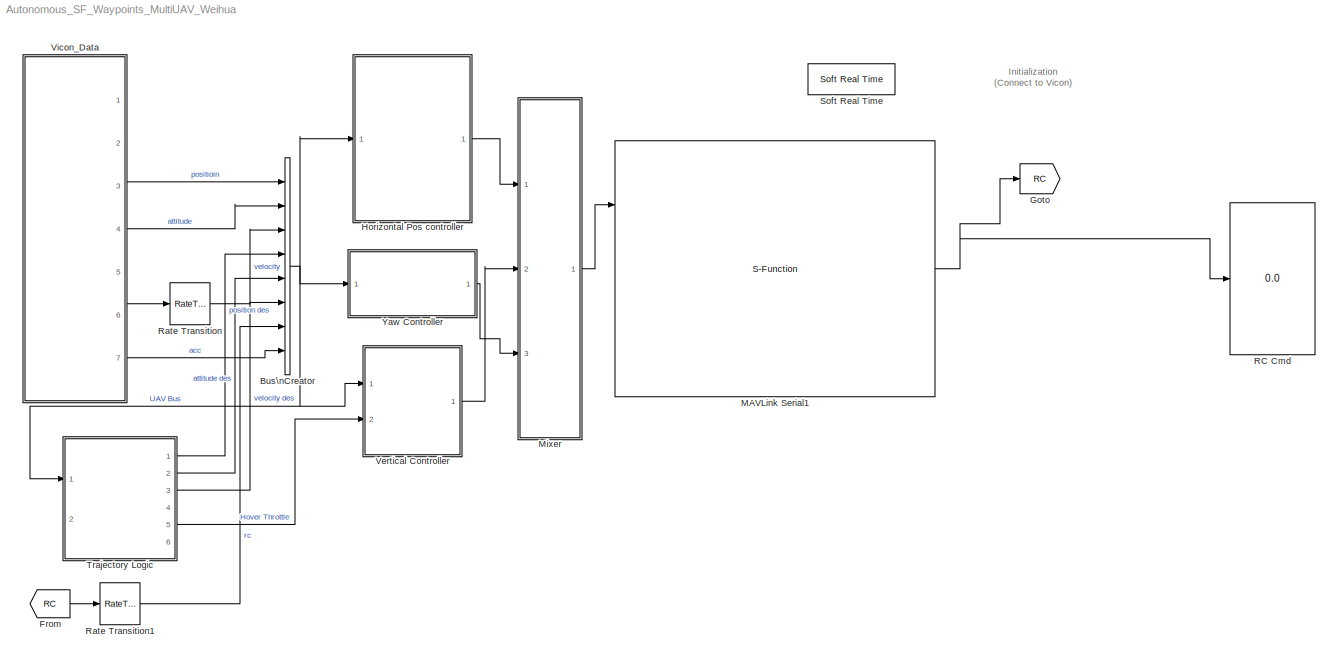
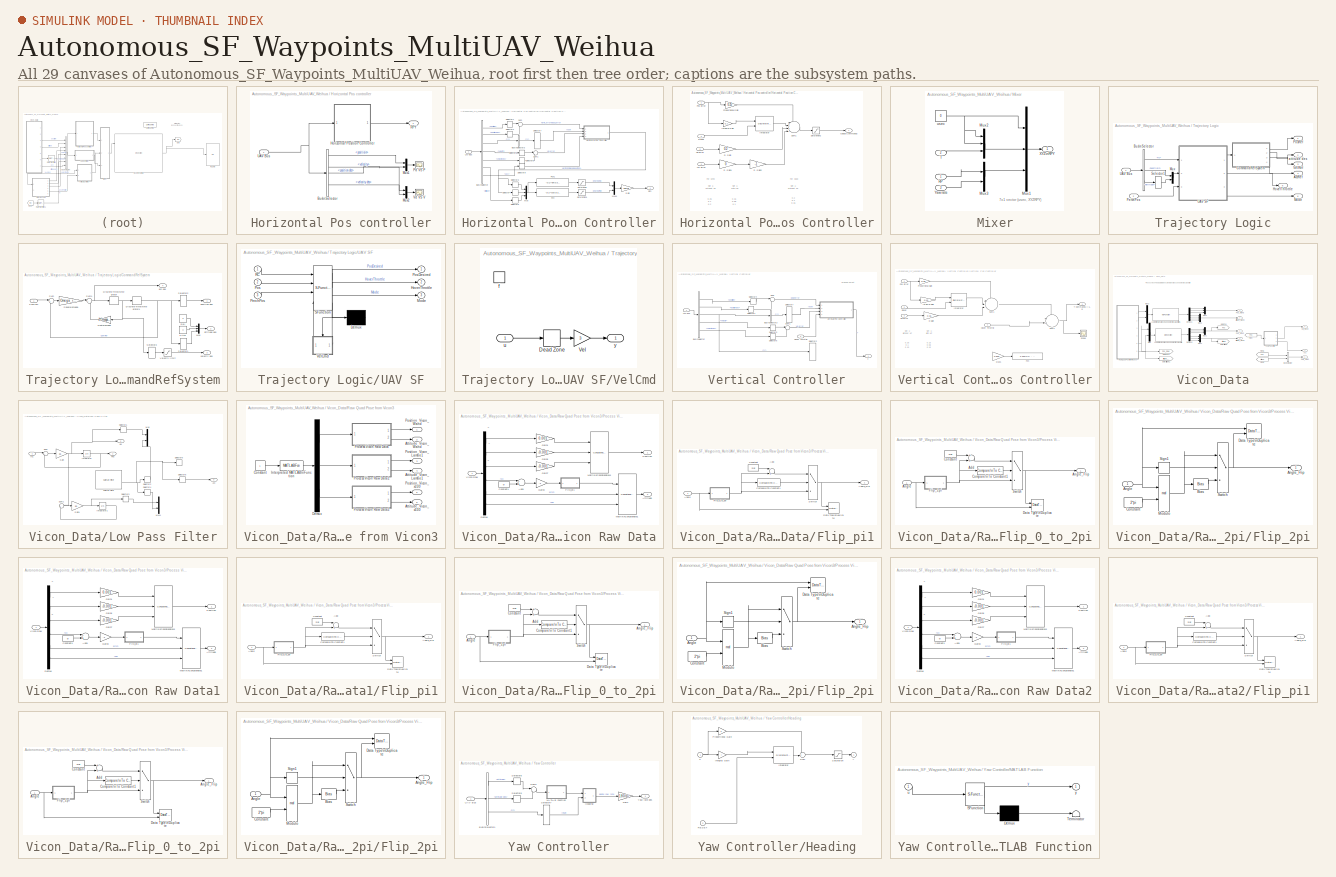
[diagram: thumbnail index - all 29 canvases of the model, root first then tree order]
MODEL Autonomous_SF_Waypoints_MultiUAV_Weihua
KIND model
CONFIG InitFcn = sample_time=0.02;\n\n
CONFIG PreLoadFcn = DeltaT = sample_time;\nH0 = -0.3;\nKl = 1;\nOmega_r = 1.5
BLOCK [BusCreator] Bus\nCreator
  DisplayOption = bar
  Inputs = 8
  Ports = [8, 1]
  SID = 2
BLOCK [From] From
  GotoTag = RC
  SID = 4
  TagVisibility = global
BLOCK [Goto] Goto
  GotoTag = RC
  SID = 5
  TagVisibility = global
BLOCK [SubSystem] Horizontal Pos controller
  FunctionWithSeparateData = off
  MaskHideContents = off
  MinAlgLoopOccurrences = off
  Opaque = off
  Ports = [1, 1]
  PropExecContextOutsideSubsystem = off
  RTWSystemCode = Auto
  RequestExecContextInheritance = off
  SID = 6
BLOCK [BusSelector] Horizontal Pos controller/Bus\nSelector
  OutputSignals = positioin,attitude,velocity,position des,attitude des,velocity des,rc
  Ports = [1, 7]
  SID = 8
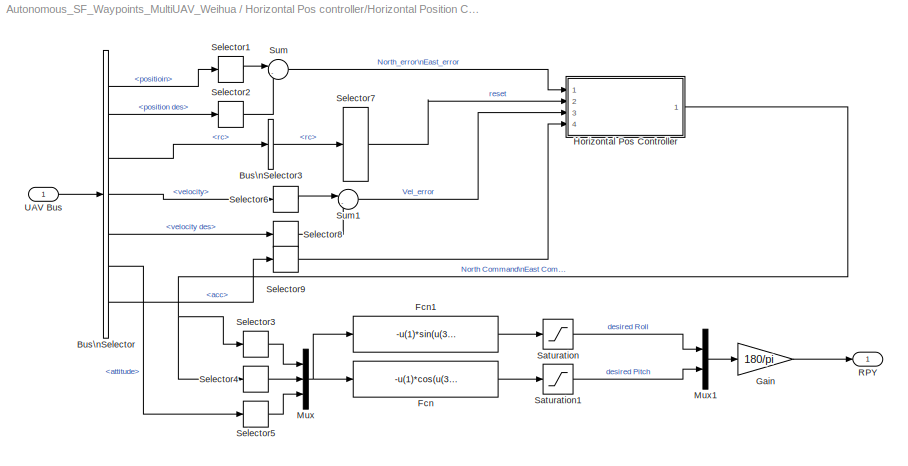
BLOCK [SubSystem] Horizontal Pos controller/Horizontal Position Controller
  FunctionWithSeparateData = off
  MaskHideContents = off
  MinAlgLoopOccurrences = off
  Opaque = off
  Ports = [1, 1]
  PropExecContextOutsideSubsystem = off
  RTWSystemCode = Auto
  RequestExecContextInheritance = off
  SID = 9
BLOCK [BusSelector] Horizontal Pos controller/Horizontal Position Controller/Bus\nSelector
  OutputSignals = positioin,position des,rc,velocity,velocity des,attitude,acc
  Ports = [1, 7]
  SID = 11
BLOCK [BusSelector] Horizontal Pos controller/Horizontal Position Controller/Bus\nSelector3
  OutputSignals = rc
  Ports = [1, 1]
  SID = 14
BLOCK [Fcn] Horizontal Pos controller/Horizontal Position Controller/Fcn
  Expr = -u(1)*cos(u(3)) - u(2)*sin(u(3))
  SID = 15
BLOCK [Fcn] Horizontal Pos controller/Horizontal Position Controller/Fcn1
  Expr = -u(1)*sin(u(3)) + u(2)*cos(u(3))
  SID = 16
BLOCK [Gain] Horizontal Pos controller/Horizontal Position Controller/Gain
  Gain = 180/pi
  OutDataTypeStr = Inherit: Inherit via internal rule
  ParamDataTypeStr = Inherit: Inherit via internal rule
  SID = 17
  SaturateOnIntegerOverflow = off
BLOCK [SubSystem] Horizontal Pos controller/Horizontal Position Controller/Horizontal Pos Controller
  FunctionWithSeparateData = off
  MaskHideContents = off
  MinAlgLoopOccurrences = off
  Opaque = off
  Ports = [4, 1]
  PropExecContextOutsideSubsystem = off
  RTWSystemCode = Auto
  RequestExecContextInheritance = off
  SID = 18
BLOCK [Inport] Horizontal Pos controller/Horizontal Position Controller/Horizontal Pos Controller/Acc Error
  IconDisplay = Port number
  Port = 4
  SID = 454
BLOCK [Gain] Horizontal Pos controller/Horizontal Position Controller/Horizontal Pos Controller/D Gain
  Gain = 0.2
  OutDataTypeStr = double
  ParamDataTypeStr = Inherit: Inherit via internal rule
  SID = 22
  SaturateOnIntegerOverflow = off
BLOCK [Gain] Horizontal Pos controller/Horizontal Position Controller/Horizontal Pos Controller/D Gain1
  Gain = 0
  OutDataTypeStr = double
  ParamDataTypeStr = Inherit: Inherit via internal rule
  SID = 455
  SaturateOnIntegerOverflow = off
BLOCK [Gain] Horizontal Pos controller/Horizontal Position Controller/Horizontal Pos Controller/D Gain2
  Gain = -1
  OutDataTypeStr = double
  ParamDataTypeStr = Inherit: Inherit via internal rule
  SID = 458
  SaturateOnIntegerOverflow = off
BLOCK [Outport] Horizontal Pos controller/Horizontal Position Controller/Horizontal Pos Controller/Global Commands
  IconDisplay = Port number
  SID = 28
BLOCK [Gain] Horizontal Pos controller/Horizontal Position Controller/Horizontal Pos Controller/Integral Gain
  DisableCoverage = on
  Gain = 0.1
  OutDataTypeStr = double
  ParamDataTypeStr = double
  SID = 23
  SaturateOnIntegerOverflow = off
BLOCK [DiscreteIntegrator] Horizontal Pos controller/Horizontal Position Controller/Horizontal Pos Controller/Integrator
  DisableCoverage = on
  ExternalReset = rising
  ICPrevOutput = DiscIntNeverNeededParam
  ICPrevScaledInput = DiscIntNeverNeededParam
  InitialConditionMode = State only (most efficient)
  InitialConditionSource = internal
  IntegratorMethod = Integration: Trapezoidal
  LimitOutput = on
  LowerSaturationLimit = -10*pi/180
  OutDataTypeStr = double
  Ports = [2, 1]
  SID = 24
  SampleTime = sample_time
  UpperSaturationLimit = 10*pi/180
BLOCK [Inport] Horizontal Pos controller/Horizontal Position Controller/Horizontal Pos Controller/Pos Error
  IconDisplay = Port number
  SID = 19
BLOCK [Gain] Horizontal Pos controller/Horizontal Position Controller/Horizontal Pos Controller/Proportional Gain
  DisableCoverage = on
  Gain = 0.25
  OutDataTypeStr = double
  ParamDataTypeStr = double
  SID = 25
  SaturateOnIntegerOverflow = off
BLOCK [Inport] Horizontal Pos controller/Horizontal Position Controller/Horizontal Pos Controller/Reset
  IconDisplay = Port number
  Port = 2
  SID = 20
BLOCK [Saturate] Horizontal Pos controller/Horizontal Position Controller/Horizontal Pos Controller/Saturation2
  InputPortMap = u0
  LinearizeAsGain = off
  LowerLimit = -30*pi/180
  OutDataTypeStr = double
  Ports = [1, 1]
  SID = 26
  UpperLimit = 30*pi/180
BLOCK [Sum] Horizontal Pos controller/Horizontal Position Controller/Horizontal Pos Controller/Sum1
  AccumDataTypeStr = double
  DisableCoverage = on
  IconShape = round
  InputSameDT = off
  Inputs = ++++|
  OutDataTypeStr = double
  Ports = [4, 1]
  SID = 27
  SampleTime = sample_time
  SaturateOnIntegerOverflow = off
BLOCK [Inport] Horizontal Pos controller/Horizontal Position Controller/Horizontal Pos Controller/Vel Error
  IconDisplay = Port number
  Port = 3
  SID = 21
BLOCK [Mux] Horizontal Pos controller/Horizontal Position Controller/Mux
  DisplayOption = bar
  Inputs = 3
  Ports = [3, 1]
  SID = 29
BLOCK [Mux] Horizontal Pos controller/Horizontal Position Controller/Mux1
  DisplayOption = bar
  Inputs = 2
  Ports = [2, 1]
  SID = 30
BLOCK [Outport] Horizontal Pos controller/Horizontal Position Controller/RPY
  IconDisplay = Port number
  SID = 43
BLOCK [Saturate] Horizontal Pos controller/Horizontal Position Controller/Saturation
  InputPortMap = u0
  LowerLimit = -30*pi/180
  Ports = [1, 1]
  SID = 31
  UpperLimit = 30*pi/180
BLOCK [Saturate] Horizontal Pos controller/Horizontal Position Controller/Saturation1
  InputPortMap = u0
  Ports = [1, 1]
  SID = 32
BLOCK [Selector] Horizontal Pos controller/Horizontal Position Controller/Selector1
  IndexOptions = Index vector (dialog)
  Indices = [1 2]
  InputPortWidth = 3
  OutputSizes = 1
  Ports = [1, 1]
  SID = 33
BLOCK [Selector] Horizontal Pos controller/Horizontal Position Controller/Selector2
  IndexOptions = Index vector (dialog)
  Indices = [1 2]
  InputPortWidth = 3
  OutputSizes = 1
  Ports = [1, 1]
  SID = 34
BLOCK [Selector] Horizontal Pos controller/Horizontal Position Controller/Selector3
  IndexOptions = Index vector (dialog)
  Indices = [1]
  InputPortWidth = 2
  OutputSizes = 1
  Ports = [1, 1]
  SID = 35
BLOCK [Selector] Horizontal Pos controller/Horizontal Position Controller/Selector4
  IndexOptions = Index vector (dialog)
  Indices = [2]
  InputPortWidth = 2
  OutputSizes = 1
  Ports = [1, 1]
  SID = 36
BLOCK [Selector] Horizontal Pos controller/Horizontal Position Controller/Selector5
  IndexOptions = Index vector (dialog)
  Indices = [3]
  InputPortWidth = 3
  OutputSizes = 1
  Ports = [1, 1]
  SID = 37
BLOCK [Selector] Horizontal Pos controller/Horizontal Position Controller/Selector6
  IndexOptions = Index vector (dialog)
  Indices = [1 2]
  InputPortWidth = 3
  OutputSizes = 1
  Ports = [1, 1]
  SID = 38
BLOCK [Selector] Horizontal Pos controller/Horizontal Position Controller/Selector7
  IndexOptions = Index vector (dialog)
  Indices = [7]
  InputPortWidth = 8
  OutputSizes = 1
  Ports = [1, 1]
  SID = 39
BLOCK [Selector] Horizontal Pos controller/Horizontal Position Controller/Selector8
  IndexOptions = Index vector (dialog)
  Indices = [1 2]
  InputPortWidth = 3
  OutputSizes = 1
  Ports = [1, 1]
  SID = 40
BLOCK [Selector] Horizontal Pos controller/Horizontal Position Controller/Selector9
  IndexOptions = Index vector (dialog)
  Indices = [1 2]
  InputPortWidth = 3
  OutputSizes = 1
  Ports = [1, 1]
  SID = 457
BLOCK [Sum] Horizontal Pos controller/Horizontal Position Controller/Sum
  IconShape = round
  InputSameDT = off
  Inputs = |-+
  OutDataTypeStr = Inherit: Inherit via internal rule
  Ports = [2, 1]
  SID = 41
  SaturateOnIntegerOverflow = off
BLOCK [Sum] Horizontal Pos controller/Horizontal Position Controller/Sum1
  IconShape = round
  InputSameDT = off
  Inputs = |-+
  OutDataTypeStr = Inherit: Inherit via internal rule
  Ports = [2, 1]
  SID = 42
  SaturateOnIntegerOverflow = off
BLOCK [Inport] Horizontal Pos controller/Horizontal Position Controller/UAV Bus
  IconDisplay = Port number
  SID = 10
BLOCK [Mux] Horizontal Pos controller/Mux1
  DisplayOption = bar
  Inputs = 2
  Ports = [2, 1]
  SID = 531
BLOCK [Mux] Horizontal Pos controller/Mux2
  DisplayOption = bar
  Inputs = 2
  Ports = [2, 1]
  SID = 605
BLOCK [Scope] Horizontal Pos controller/Pd VS P
  DataFormat = StructureWithTime
  Floating = off
  LimitDataPoints = off
  NumInputPorts = 1
  Ports = [1]
  SID = 532
  SampleTime = 0
  SaveName = ScopeData16
  TimeRange = 10
  YMax = 1.5
  YMin = -2.75
BLOCK [Outport] Horizontal Pos controller/RPY
  IconDisplay = Port number
  SID = 53
BLOCK [Inport] Horizontal Pos controller/UAV Bus
  IconDisplay = Port number
  SID = 7
BLOCK [Scope] Horizontal Pos controller/Vd VS V
  DataFormat = StructureWithTime
  Floating = off
  LimitDataPoints = off
  NumInputPorts = 1
  Ports = [1]
  SID = 606
  SampleTime = 0
  TimeRange = 10
  YMax = 4
  YMin = -4
BLOCK [S-Function] MAVLink Serial1
  EnableBusSupport = off
  FunctionName = MAVLink_Interface_MultUAV
  MaskCallbackString = |||||
  MaskDisplay = % Block image\nimage(imread('10-inch Quad Heat Map.png'));\n\n%Label block\nfprintf('MAVLink Serial\\n%s\\n%dbps', COM_Port,  Baud_Rate)\n\n\n%Label input ports\n\nin = 1;\nif (Quad_1 == 1)\n    port_label('input', in, 'Quad 1');\n    in = in + 1;\nend\nif (Quad_2 == 1)\n    port_label('input', in, 'Quad 2');\n    in = in + 1;\nend\n\nif (Quad_3 == 1)\n    port_label('input', in, 'Quad 3');\n    i...<+141ch>
  MaskEnableString = on,on,on,on,on,on
  MaskIconFrame = on
  MaskIconOpaque = off
  MaskIconRotate = none
  MaskIconUnits = autoscale
  MaskInitialization = MSG_ID_NUM_INPUT = [uint8(196) uint8(197) uint8(198)];\nMSG_ID_NAME_INPUT = [Quad_1 Quad_2 Quad_3];\n\nMSG_ID_NUM_OUTPUT = [uint8(34)];\nMSG_ID_NAME_OUTPUT = [RC_SCALED];\n\nidx_input = find(MSG_ID_NAME_INPUT);\nMSG_INPUT = MSG_ID_NUM_INPUT(idx_input);\n\nidx_output = find(MSG_ID_NAME_OUTPUT);\nMSG_OUTPUT = MSG_ID_NUM_OUTPUT(idx_output);
  MaskPortRotate = default
  MaskPromptString = COM Port|Baud Rate|RC CHANNELS SCALED|Quad No 1|Quad No 2|Quad No 3
  MaskStyleString = edit,edit,checkbox,checkbox,checkbox,checkbox
  MaskTabNameString = Setting,Setting,Output Message,Input Message,Input Message,Input Message
  MaskToolTipString = on,on,on,on,on,on
  MaskTunableValueString = on,on,on,on,on,on
  MaskValueString = 'COM3'|57600|on|on|on|on
  MaskVariables = COM_Port=@1;Baud_Rate=@2;RC_SCALED=@3;Quad_1=@4;Quad_2=@5;Quad_3=@6;
  MaskVisibilityString = on,on,on,on,on,on
  Parameters = COM_Port,Baud_Rate,MSG_INPUT,MSG_OUTPUT
  Ports = [3, 1]
  SID = 54
BLOCK [SubSystem] Mixer
  FunctionWithSeparateData = off
  MaskHideContents = off
  MinAlgLoopOccurrences = off
  Opaque = off
  Ports = [3, 1]
  PropExecContextOutsideSubsystem = off
  RTWSystemCode = Auto
  RequestExecContextInheritance = off
  SID = 60
BLOCK [Mux] Mixer/Mux1
  DisplayOption = bar
  Inputs = 3
  Ports = [3, 1]
  SID = 64
BLOCK [Mux] Mixer/Mux2
  DisplayOption = bar
  Inputs = 3
  Ports = [3, 1]
  SID = 65
BLOCK [Mux] Mixer/Mux3
  DisplayOption = bar
  Inputs = 2
  Ports = [2, 1]
  SID = 66
BLOCK [Inport] Mixer/RP
  IconDisplay = Port number
  SID = 61
BLOCK [Inport] Mixer/T
  IconDisplay = Port number
  Port = 2
  SID = 62
BLOCK [Outport] Mixer/XYZ\nRPY
  IconDisplay = Port number
  SID = 68
BLOCK [Inport] Mixer/Yaw rate
  IconDisplay = Port number
  Port = 3
  SID = 63
BLOCK [Constant] Mixer/usec
  SID = 67
  Value = 0
BLOCK [Display] RC Cmd
  Decimation = 1
  Lockdown = off
  Ports = [1]
  SID = 55
BLOCK [RateTransition] Rate Transition
  OutPortSampleTime = sample_time
  SID = 56
BLOCK [RateTransition] Rate Transition1
  OutPortSampleTime = sample_time
  SID = 57
BLOCK [Reference] Soft Real Time  REF=utility/Soft Real Time  (lib defined in slx_8818c3a16fdf)
  Ports = []
  SID = 59
  SourceBlock = utility/Soft Real Time
  x = 0.01
BLOCK [SubSystem] Trajectory Logic
  FunctionWithSeparateData = off
  MaskHideContents = off
  MinAlgLoopOccurrences = off
  Opaque = off
  Ports = [2, 6]
  PropExecContextOutsideSubsystem = off
  RTWSystemCode = Auto
  RequestExecContextInheritance = off
  SID = 573
BLOCK [Outport] Trajectory Logic/AccRef
  IconDisplay = Port number
  Port = 4
  SID = 577
BLOCK [BusSelector] Trajectory Logic/Bus\nSelector
  OutputSignals = rc,positioin,attitude
  Ports = [1, 3]
  SID = 583
BLOCK [SubSystem] Trajectory Logic/CommandRefSystem
  FunctionWithSeparateData = off
  MaskHideContents = off
  MinAlgLoopOccurrences = off
  Opaque = off
  Ports = [1, 4]
  PropExecContextOutsideSubsystem = off
  RTWSystemCode = Auto
  RequestExecContextInheritance = off
  SID = 561
BLOCK [Gain] Trajectory Logic/CommandRefSystem/2*zeta*omega
  Gain = 2*Omega_r
  OutDataTypeStr = Inherit: Inherit via internal rule
  ParamDataTypeStr = Inherit: Inherit via internal rule
  SID = 563
  SaturateOnIntegerOverflow = off
BLOCK [DiscreteIntegrator] Trajectory Logic/CommandRefSystem/Discrete-Time\nIntegrator
  ExternalReset = none
  ICPrevOutput = DiscIntNeverNeededParam
  ICPrevScaledInput = DiscIntNeverNeededParam
  InitialConditionSource = internal
  IntegratorMethod = Integration: Forward Euler
  Ports = [1, 1]
  SID = 601
  SampleTime = sample_time
BLOCK [DiscreteIntegrator] Trajectory Logic/CommandRefSystem/Discrete-Time\nIntegrator1
  ExternalReset = none
  ICPrevOutput = DiscIntNeverNeededParam
  ICPrevScaledInput = DiscIntNeverNeededParam
  InitialConditionSource = internal
  IntegratorMethod = Integration: Forward Euler
  Ports = [1, 1]
  SID = 602
  SampleTime = sample_time
BLOCK [Mux] Trajectory Logic/CommandRefSystem/Mux
  DisplayOption = bar
  Inputs = 3
  Ports = [3, 1]
  SID = 588
BLOCK [Constant] Trajectory Logic/CommandRefSystem/Pitch
  SID = 586
  SampleTime = sample_time
  Value = 0
BLOCK [Inport] Trajectory Logic/CommandRefSystem/PosCom
  IconDisplay = Port number
  SID = 562
BLOCK [Constant] Trajectory Logic/CommandRefSystem/Roll
  SID = 587
  SampleTime = sample_time
  Value = 0
BLOCK [Selector] Trajectory Logic/CommandRefSystem/Selector1
  IndexOptions = Index vector (dialog)
  Indices = [4]
  InputPortWidth = 4
  OutputSizes = 1
  Ports = [1, 1]
  SID = 585
BLOCK [Selector] Trajectory Logic/CommandRefSystem/Selector2
  IndexOptions = Index vector (dialog)
  Indices = [1 2 3]
  InputPortWidth = 4
  OutputSizes = 1
  Ports = [1, 1]
  SID = 584
BLOCK [Selector] Trajectory Logic/CommandRefSystem/Selector3
  IndexOptions = Index vector (dialog)
  Indices = [1 2 3]
  InputPortWidth = 4
  OutputSizes = 1
  Ports = [1, 1]
  SID = 590
BLOCK [Gain] Trajectory Logic/CommandRefSystem/Square(omega)
  Gain = Omega_r^2
  OutDataTypeStr = Inherit: Inherit via internal rule
  ParamDataTypeStr = Inherit: Inherit via internal rule
  SID = 566
  SaturateOnIntegerOverflow = off
BLOCK [Sum] Trajectory Logic/CommandRefSystem/Sum
  IconShape = round
  InputSameDT = off
  Inputs = |+-
  OutDataTypeStr = Inherit: Inherit via internal rule
  Ports = [2, 1]
  SID = 567
  SaturateOnIntegerOverflow = off
BLOCK [Sum] Trajectory Logic/CommandRefSystem/Sum1
  IconShape = round
  InputSameDT = off
  Inputs = |+-
  OutDataTypeStr = Inherit: Inherit via internal rule
  Ports = [2, 1]
  SID = 568
  SaturateOnIntegerOverflow = off
BLOCK [Saturate] Trajectory Logic/CommandRefSystem/Velocity limit
  InputPortMap = u0
  LowerLimit = -3
  Ports = [1, 1]
  SID = 603
  UpperLimit = 3
BLOCK [Outport] Trajectory Logic/CommandRefSystem/acc des
  IconDisplay = Port number
  Port = 4
  SID = 571
BLOCK [Outport] Trajectory Logic/CommandRefSystem/attitude des
  IconDisplay = Port number
  Port = 2
  SID = 589
BLOCK [Outport] Trajectory Logic/CommandRefSystem/position des
  IconDisplay = Port number
  SID = 569
BLOCK [Outport] Trajectory Logic/CommandRefSystem/velocity des
  IconDisplay = Port number
  Port = 3
  SID = 570
BLOCK [Outport] Trajectory Logic/HoverThrottle
  IconDisplay = Port number
  Port = 5
  SID = 579
BLOCK [Outport] Trajectory Logic/Mode
  IconDisplay = Port number
  Port = 6
  SID = 581
BLOCK [Mux] Trajectory Logic/Mux
  DisplayOption = bar
  Inputs = 2
  Ports = [2, 1]
  SID = 593
BLOCK [Inport] Trajectory Logic/PerchPos
  IconDisplay = Port number
  Port = 2
  SID = 580
BLOCK [Outport] Trajectory Logic/PosRef
  IconDisplay = Port number
  SID = 574
BLOCK [Selector] Trajectory Logic/Selector1
  IndexOptions = Index vector (dialog)
  Indices = [3]
  InputPortWidth = 3
  OutputSizes = 1
  Ports = [1, 1]
  SID = 592
BLOCK [Inport] Trajectory Logic/UAV Bus
  IconDisplay = Port number
  SID = 582
BLOCK [SubSystem] Trajectory Logic/UAV SF
  ErrorFcn = Stateflow.Translate.translate
  FunctionWithSeparateData = off
  MaskDescription = Stateflow diagram
  MaskDisplay = plot(sf('Private','sfblk','xIcon'),sf('Private','sfblk','yIcon'));text(0.5,0,sf('Private', 'sfblk', 'tIcon'),'HorizontalAl','Center','VerticalAl','Bottom');
  MaskHideContents = off
  MaskIconFrame = off
  MaskIconOpaque = off
  MaskIconRotate = none
  MaskIconUnits = autoscale
  MaskPortRotate = default
  MaskSelfModifiable = on
  MaskType = Stateflow
  MinAlgLoopOccurrences = off
  Opaque = off
  PermitHierarchicalResolution = ExplicitOnly
  Ports = [3, 3]
  PropExecContextOutsideSubsystem = off
  RTWSystemCode = Auto
  RequestExecContextInheritance = off
  SID = 572
  TreatAsAtomicUnit = on
BLOCK [Demux] Trajectory Logic/UAV SF/ Demux 
  Outputs = 1
  Ports = [1, 1]
  SID = 572::8
BLOCK [S-Function] Trajectory Logic/UAV SF/ SFunction 
  EnableBusSupport = on
  FunctionName = sf_sfun
  Parameters = DeltaT,H0,Kl
  PortCounts = [4 5]
  Ports = [4, 5]
  SID = 572::7
  Tag = Stateflow S-Function Autonomous_SF_Waypoints_MultiUAV_Weihua 3
BLOCK [Outport] Trajectory Logic/UAV SF/HoverThrottle
  IconDisplay = Port number
  Port = 2
  SID = 572::17
BLOCK [Outport] Trajectory Logic/UAV SF/Mode
  IconDisplay = Port number
  Port = 3
  SID = 572::18
BLOCK [Inport] Trajectory Logic/UAV SF/PerchPos
  IconDisplay = Port number
  Port = 3
  SID = 572::23
BLOCK [Inport] Trajectory Logic/UAV SF/Pos
  IconDisplay = Port number
  Port = 2
  SID = 572::20
BLOCK [Outport] Trajectory Logic/UAV SF/PosDesired
  IconDisplay = Port number
  SID = 572::16
BLOCK [Inport] Trajectory Logic/UAV SF/RC
  IconDisplay = Port number
  SID = 572::19
BLOCK [SubSystem] Trajectory Logic/UAV SF/VelCmd
  FunctionWithSeparateData = off
  MaskHideContents = off
  MinAlgLoopOccurrences = off
  Opaque = off
  Ports = [1, 1, 0, 1]
  PreDeleteFcn = Stateflow.SLINSF.SimulinkMan.removePreDeleteFcn
  PropExecContextOutsideSubsystem = off
  RTWSystemCode = Auto
  RequestExecContextInheritance = off
  SID = 572::29
  UndoDeleteFcn = Stateflow.SLINSF.SimulinkMan.restorePreDeleteFcn
BLOCK [DeadZone] Trajectory Logic/UAV SF/VelCmd/Dead Zone
  LowerValue = -0.1
  SID = 572::33
  UpperValue = 0.1
BLOCK [Gain] Trajectory Logic/UAV SF/VelCmd/Vel
  Gain = 3
  OutDataTypeStr = Inherit: Inherit via internal rule
  ParamDataTypeStr = Inherit: Inherit via internal rule
  SID = 572::34
  SaturateOnIntegerOverflow = off
BLOCK [TriggerPort] Trajectory Logic/UAV SF/VelCmd/f
  CopyFcn = set_param(gcbh,'PreDeleteFcn','')
  Ports = []
  PreDeleteFcn = Stateflow.SLINSF.SimulinkMan.unsafePredeleteFcn
  SID = 572::30
  StatesWhenEnabling = held
  TriggerType = function-call
BLOCK [Inport] Trajectory Logic/UAV SF/VelCmd/u
  IconDisplay = Port number
  SID = 572::31
BLOCK [Outport] Trajectory Logic/UAV SF/VelCmd/y
  IconDisplay = Port number
  SID = 572::32
BLOCK [Outport] Trajectory Logic/VelRef
  IconDisplay = Port number
  Port = 3
  SID = 575
BLOCK [Outport] Trajectory Logic/attitude des
  IconDisplay = Port number
  Port = 2
  SID = 591
BLOCK [SubSystem] Vertical Controller
  FunctionWithSeparateData = off
  MaskHideContents = off
  MinAlgLoopOccurrences = off
  Opaque = off
  Ports = [2, 1]
  PropExecContextOutsideSubsystem = off
  RTWSystemCode = Auto
  RequestExecContextInheritance = off
  SID = 124
BLOCK [BusSelector] Vertical Controller/Bus\nSelector
  OutputSignals = positioin,position des,rc,velocity,velocity des
  Ports = [1, 5]
  SID = 126
BLOCK [BusSelector] Vertical Controller/Bus\nSelector3
  OutputSignals = rc
  Ports = [1, 1]
  SID = 411
BLOCK [Inport] Vertical Controller/Hover Throttle
  IconDisplay = Port number
  Port = 2
  SID = 598
BLOCK [Selector] Vertical Controller/Selector1
  IndexOptions = Index vector (dialog)
  Indices = [3]
  InputPortWidth = 3
  OutputSizes = 1
  Ports = [1, 1]
  SID = 430
BLOCK [Selector] Vertical Controller/Selector2
  IndexOptions = Index vector (dialog)
  Indices = [1]
  InputPortWidth = 8
  OutputSizes = 1
  Ports = [1, 1]
  SID = 127
BLOCK [Selector] Vertical Controller/Selector3
  IndexOptions = Index vector (dialog)
  Indices = [3]
  InputPortWidth = 3
  OutputSizes = 1
  Ports = [1, 1]
  SID = 431
BLOCK [Selector] Vertical Controller/Selector4
  IndexOptions = Index vector (dialog)
  Indices = [3]
  InputPortWidth = 3
  OutputSizes = 1
  Ports = [1, 1]
  SID = 423
BLOCK [Selector] Vertical Controller/Selector5
  IndexOptions = Index vector (dialog)
  Indices = [3]
  InputPortWidth = 3
  OutputSizes = 1
  Ports = [1, 1]
  SID = 432
BLOCK [Selector] Vertical Controller/Selector7
  IndexOptions = Index vector (dialog)
  Indices = [7]
  InputPortWidth = 8
  OutputSizes = 1
  Ports = [1, 1]
  SID = 426
BLOCK [Sum] Vertical Controller/Sum
  IconShape = round
  InputSameDT = off
  Inputs = |-+
  OutDataTypeStr = Inherit: Inherit via internal rule
  Ports = [2, 1]
  SID = 428
  SaturateOnIntegerOverflow = off
BLOCK [Sum] Vertical Controller/Sum1
  IconShape = round
  InputSameDT = off
  Inputs = |-+
  OutDataTypeStr = Inherit: Inherit via internal rule
  Ports = [2, 1]
  SID = 429
  SaturateOnIntegerOverflow = off
BLOCK [Outport] Vertical Controller/T
  IconDisplay = Port number
  SID = 128
BLOCK [Inport] Vertical Controller/UAV bus
  IconDisplay = Port number
  SID = 125
BLOCK [SubSystem] Vertical Controller/Verticall Pos Controller
  FunctionWithSeparateData = off
  MaskHideContents = off
  MinAlgLoopOccurrences = off
  Opaque = off
  Ports = [4, 1]
  PropExecContextOutsideSubsystem = off
  RTWSystemCode = Auto
  RequestExecContextInheritance = off
  SID = 412
BLOCK [Gain] Vertical Controller/Verticall Pos Controller/D Gain
  Gain = 0.15
  OutDataTypeStr = double
  ParamDataTypeStr = Inherit: Inherit via internal rule
  SID = 416
  SaturateOnIntegerOverflow = off
BLOCK [Fcn] Vertical Controller/Verticall Pos Controller/Fcn
  Expr = 0.059*u(1) - 0.703
  SID = 433
BLOCK [Inport] Vertical Controller/Verticall Pos Controller/Hover Throttle
  IconDisplay = Port number
  Port = 4
  SID = 597
BLOCK [Gain] Vertical Controller/Verticall Pos Controller/Integral Gain
  DisableCoverage = on
  Gain = 0.15
  OutDataTypeStr = double
  ParamDataTypeStr = double
  SID = 417
  SaturateOnIntegerOverflow = off
BLOCK [DiscreteIntegrator] Vertical Controller/Verticall Pos Controller/Integrator
  DisableCoverage = on
  ExternalReset = rising
  ICPrevOutput = DiscIntNeverNeededParam
  ICPrevScaledInput = DiscIntNeverNeededParam
  InitialConditionMode = State only (most efficient)
  InitialConditionSource = internal
  IntegratorMethod = Integration: Trapezoidal
  LimitOutput = on
  LowerSaturationLimit = -0.3
  OutDataTypeStr = double
  Ports = [2, 1]
  SID = 418
  SampleTime = -1
  UpperSaturationLimit = 0.3
BLOCK [Gain] Vertical Controller/Verticall Pos Controller/Mass
  Gain = 0.819
  OutDataTypeStr = Inherit: Inherit via internal rule
  ParamDataTypeStr = Inherit: Inherit via internal rule
  SID = 443
  SaturateOnIntegerOverflow = off
BLOCK [Inport] Vertical Controller/Verticall Pos Controller/Pos Error
  IconDisplay = Port number
  SID = 413
BLOCK [Gain] Vertical Controller/Verticall Pos Controller/Proportional Gain
  DisableCoverage = on
  Gain = 0.25
  OutDataTypeStr = double
  ParamDataTypeStr = double
  SID = 419
  SaturateOnIntegerOverflow = off
BLOCK [Inport] Vertical Controller/Verticall Pos Controller/Reset
  IconDisplay = Port number
  Port = 2
  SID = 414
BLOCK [Scope] Vertical Controller/Verticall Pos Controller/Scope
  DataFormat = StructureWithTime
  Floating = off
  NumInputPorts = 1
  Ports = [1]
  SID = 518
  SampleTime = 0
  SaveName = ScopeData14
  YMax = 1
  YMin = -1
BLOCK [Sum] Vertical Controller/Verticall Pos Controller/Sum1
  AccumDataTypeStr = double
  DisableCoverage = on
  IconShape = round
  InputSameDT = off
  Inputs = ---|
  OutDataTypeStr = double
  Ports = [3, 1]
  SID = 421
  SampleTime = sample_time
  SaturateOnIntegerOverflow = off
BLOCK [Sum] Vertical Controller/Verticall Pos Controller/Sum2
  AccumDataTypeStr = double
  DisableCoverage = on
  IconShape = round
  InputSameDT = off
  Inputs = ++|
  OutDataTypeStr = double
  Ports = [2, 1]
  SID = 524
  SampleTime = sample_time
  SaturateOnIntegerOverflow = off
BLOCK [Outport] Vertical Controller/Verticall Pos Controller/T  Commands [-1, 1]
  IconDisplay = Port number
  SID = 422
BLOCK [Inport] Vertical Controller/Verticall Pos Controller/Vel Error
  IconDisplay = Port number
  Port = 3
  SID = 415
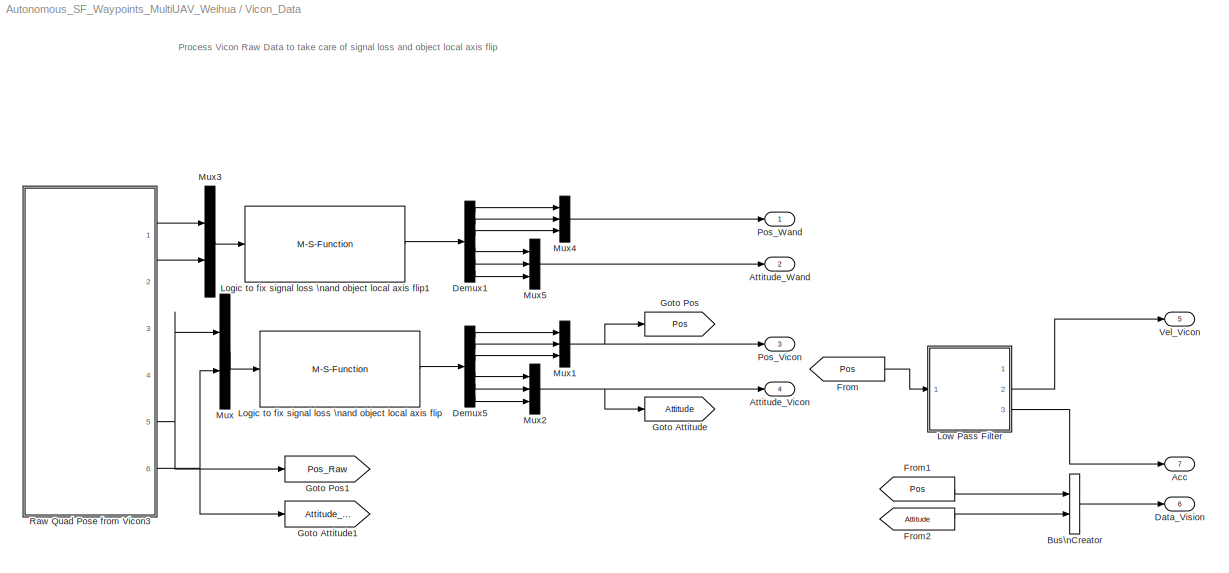
BLOCK [SubSystem] Vicon_Data
  FunctionWithSeparateData = off
  MaskHideContents = off
  MinAlgLoopOccurrences = off
  Opaque = off
  Ports = [0, 7]
  PropExecContextOutsideSubsystem = off
  RTWSystemCode = Auto
  RequestExecContextInheritance = off
  SID = 129
BLOCK [Outport] Vicon_Data/Acc
  IconDisplay = Port number
  Port = 7
  SID = 453
BLOCK [Outport] Vicon_Data/Attitude_Vicon
  IconDisplay = Port number
  Port = 4
  SID = 312
BLOCK [Outport] Vicon_Data/Attitude_Wand
  IconDisplay = Port number
  Port = 2
  SID = 310
BLOCK [BusCreator] Vicon_Data/Bus\nCreator
  DisplayOption = bar
  Inputs = 2
  Ports = [2, 1]
  SID = 130
BLOCK [Outport] Vicon_Data/Data_Vision
  IconDisplay = Port number
  Port = 6
  SID = 314
BLOCK [Demux] Vicon_Data/Demux1
  DisplayOption = bar
  Outputs = 6
  Ports = [1, 6]
  SID = 153
BLOCK [Demux] Vicon_Data/Demux5
  DisplayOption = bar
  Outputs = 6
  Ports = [1, 6]
  SID = 155
BLOCK [From] Vicon_Data/From
  GotoTag = Pos
  SID = 156
BLOCK [From] Vicon_Data/From1
  GotoTag = Pos
  SID = 157
BLOCK [From] Vicon_Data/From2
  GotoTag = Attitude
  SID = 158
BLOCK [Goto] Vicon_Data/Goto Attitude
  GotoTag = Attitude
  SID = 163
  TagVisibility = local
BLOCK [Goto] Vicon_Data/Goto Attitude1
  GotoTag = Attitude_Raw
  SID = 164
  TagVisibility = local
BLOCK [Goto] Vicon_Data/Goto Pos
  GotoTag = Pos
  SID = 165
  TagVisibility = local
BLOCK [Goto] Vicon_Data/Goto Pos1
  GotoTag = Pos_Raw
  SID = 166
  TagVisibility = local
BLOCK [M-S-Function] Vicon_Data/Logic to fix signal loss \nand object local axis flip
  FunctionName = Vicon_Filter
  Ports = [1, 1]
  SID = 167
BLOCK [M-S-Function] Vicon_Data/Logic to fix signal loss \nand object local axis flip1
  FunctionName = Vicon_Filter
  Ports = [1, 1]
  SID = 168
BLOCK [SubSystem] Vicon_Data/Low Pass Filter
  FunctionWithSeparateData = off
  MaskHideContents = off
  MinAlgLoopOccurrences = off
  Opaque = off
  Ports = [1, 3]
  PropExecContextOutsideSubsystem = off
  RTWSystemCode = Auto
  RequestExecContextInheritance = off
  SID = 169
BLOCK [Outport] Vicon_Data/Low Pass Filter/Acc
  IconDisplay = Port number
  Port = 3
  SID = 452
BLOCK [Gain] Vicon_Data/Low Pass Filter/Gain
  Gain = 15
  OutDataTypeStr = Inherit: Inherit via internal rule
  ParamDataTypeStr = Inherit: Inherit via internal rule
  SID = 171
  SaturateOnIntegerOverflow = off
BLOCK [Gain] Vicon_Data/Low Pass Filter/Gain1
  Gain = 20
  OutDataTypeStr = Inherit: Inherit via internal rule
  ParamDataTypeStr = Inherit: Inherit via internal rule
  SID = 367
  SaturateOnIntegerOverflow = off
BLOCK [Inport] Vicon_Data/Low Pass Filter/In1
  IconDisplay = Port number
  SID = 170
BLOCK [Integrator] Vicon_Data/Low Pass Filter/Integrator
  Ports = [1, 1]
  SID = 172
BLOCK [Integrator] Vicon_Data/Low Pass Filter/Integrator1
  Ports = [1, 1]
  SID = 368
BLOCK [Reference] Vicon_Data/Low Pass Filter/Kalman Filter  REF=dspadpt3/Kalman Filter
  A = [1 sample_time sample_time*sample_time/2 zeros(1,6);0 1 sample_time zeros(1,6);0 0 1 zeros(1,6);0 0 0 1 sample_time sample_time*sample_time/2 0 0 0;zeros(1,4) 1 sample_time zeros(1,3);zeros(1,5) 1 zeros(1,3);zeros(1,6) 1 sample_time sample_time*sample_time/2;zeros(1,7) 1 sample_time;zeros(1,8) 1]
  FunctionWithSeparateData = off
  GeneratePreprocessorConditionals = off
  H = [1 zeros(1,8); zeros(1,3) 1 zeros(1,5);zeros(1,6) 1 0 0]
  P = zeros(9)
  Ports = [1, 2]
  Q = diag([0 0.001 0.001 0 0.001 0.001 0 0.001 0.001])
  R = 0.001*eye(3)
  RTWMemSecDataConstants = Inherit from model
  RTWMemSecDataInternal = Inherit from model
  RTWMemSecDataParameters = Inherit from model
  RTWMemSecFuncExecute = Inherit from model
  RTWMemSecFuncInitTerm = Inherit from model
  SID = 362
  ShowPortLabels = FromPortIcon
  SourceBlock = dspadpt3/Kalman Filter
  SourceType = Kalman Filter
  SystemSampleTime = -1
  X = zeros([9, 1])
  isOutputEstError = off
  isOutputEstMeasure = on
  isOutputEstState = on
  isOutputPrdError = off
  isOutputPrdMeasure = off
  isOutputPrdState = off
  isReset = on
  num_targets = 1
  sourceEnable = Always
  sourceMeasure = Specify via Dialog
BLOCK [Mux] Vicon_Data/Low Pass Filter/Mux
  DisplayOption = bar
  Inputs = 2
  Ports = [2, 1]
  SID = 365
BLOCK [Mux] Vicon_Data/Low Pass Filter/Mux1
  DisplayOption = bar
  Inputs = 2
  Ports = [2, 1]
  SID = 374
BLOCK [Outport] Vicon_Data/Low Pass Filter/Pos
  IconDisplay = Port number
  SID = 174
BLOCK [Selector] Vicon_Data/Low Pass Filter/Selector1
  IndexOptions = Index vector (dialog)
  Indices = [2]
  InputPortWidth = 3
  OutputSizes = 1
  Ports = [1, 1]
  SID = 363
BLOCK [Selector] Vicon_Data/Low Pass Filter/Selector2
  IndexOptions = Index vector (dialog)
  Indices = [5]
  InputPortWidth = 9
  OutputSizes = 1
  Ports = [1, 1]
  SID = 366
BLOCK [Selector] Vicon_Data/Low Pass Filter/Selector3
  IndexOptions = Index vector (dialog)
  Indices = [2]
  InputPortWidth = 3
  OutputSizes = 1
  Ports = [1, 1]
  SID = 373
BLOCK [Selector] Vicon_Data/Low Pass Filter/Selector4
  IndexOptions = Index vector (dialog)
  Indices = [6]
  InputPortWidth = 9
  OutputSizes = 1
  Ports = [1, 1]
  SID = 372
BLOCK [Selector] Vicon_Data/Low Pass Filter/Selector5
  IndexOptions = Index vector (dialog)
  Indices = [2 5 8]
  InputPortWidth = 9
  OutputSizes = 1
  Ports = [1, 1]
  SID = 448
BLOCK [Selector] Vicon_Data/Low Pass Filter/Selector6
  IndexOptions = Index vector (dialog)
  Indices = [3 6 9]
  InputPortWidth = 9
  OutputSizes = 1
  Ports = [1, 1]
  SID = 451
BLOCK [Sum] Vicon_Data/Low Pass Filter/Sum
  IconShape = round
  InputSameDT = off
  Inputs = |+-
  OutDataTypeStr = Inherit: Inherit via internal rule
  Ports = [2, 1]
  SID = 173
  SaturateOnIntegerOverflow = off
BLOCK [Sum] Vicon_Data/Low Pass Filter/Sum1
  IconShape = round
  InputSameDT = off
  Inputs = |+-
  OutDataTypeStr = Inherit: Inherit via internal rule
  Ports = [2, 1]
  SID = 369
  SaturateOnIntegerOverflow = off
BLOCK [Outport] Vicon_Data/Low Pass Filter/Vel
  IconDisplay = Port number
  Port = 2
  SID = 175
BLOCK [Mux] Vicon_Data/Mux
  DisplayOption = bar
  Inputs = 2
  Ports = [2, 1]
  SID = 176
BLOCK [Mux] Vicon_Data/Mux1
  DisplayOption = bar
  Inputs = 3
  Ports = [3, 1]
  SID = 177
BLOCK [Mux] Vicon_Data/Mux2
  DisplayOption = bar
  Inputs = 3
  Ports = [3, 1]
  SID = 178
BLOCK [Mux] Vicon_Data/Mux3
  DisplayOption = bar
  Inputs = 2
  Ports = [2, 1]
  SID = 179
BLOCK [Mux] Vicon_Data/Mux4
  DisplayOption = bar
  Inputs = 3
  Ports = [3, 1]
  SID = 180
BLOCK [Mux] Vicon_Data/Mux5
  DisplayOption = bar
  Inputs = 3
  Ports = [3, 1]
  SID = 181
BLOCK [Outport] Vicon_Data/Pos_Vicon
  IconDisplay = Port number
  Port = 3
  SID = 311
BLOCK [Outport] Vicon_Data/Pos_Wand
  IconDisplay = Port number
  SID = 309
BLOCK [SubSystem] Vicon_Data/Raw Quad Pose from Vicon3
  FunctionWithSeparateData = off
  MaskHideContents = off
  MinAlgLoopOccurrences = off
  Opaque = off
  Ports = [0, 6]
  PropExecContextOutsideSubsystem = off
  RTWSystemCode = Auto
  RequestExecContextInheritance = off
  SID = 182
BLOCK [Outport] Vicon_Data/Raw Quad Pose from Vicon3/Attitude_Vicon_Lambo1
  IconDisplay = Port number
  Port = 4
  SID = 303
BLOCK [Outport] Vicon_Data/Raw Quad Pose from Vicon3/Attitude_Vicon_Wand
  IconDisplay = Port number
  Port = 2
  SID = 301
BLOCK [Outport] Vicon_Data/Raw Quad Pose from Vicon3/Attitude_Vicon_x330
  IconDisplay = Port number
  Port = 6
  SID = 305
BLOCK [Constant] Vicon_Data/Raw Quad Pose from Vicon3/Constant
  SID = 183
BLOCK [Demux] Vicon_Data/Raw Quad Pose from Vicon3/Demux
  DisplayOption = bar
  Outputs = 3
  Ports = [1, 3]
  SID = 184
BLOCK [MATLABFcn] Vicon_Data/Raw Quad Pose from Vicon3/Interpreted MATLAB\nFunction
  MATLABFcn = GetViconPose
  Ports = [1, 1]
  SID = 185
BLOCK [Outport] Vicon_Data/Raw Quad Pose from Vicon3/Position_Vicon_Lambo1
  IconDisplay = Port number
  Port = 3
  SID = 302
BLOCK [Outport] Vicon_Data/Raw Quad Pose from Vicon3/Position_Vicon_Wand
  IconDisplay = Port number
  SID = 300
BLOCK [Outport] Vicon_Data/Raw Quad Pose from Vicon3/Position_Vicon_x330
  IconDisplay = Port number
  Port = 5
  SID = 304
BLOCK [SubSystem] Vicon_Data/Raw Quad Pose from Vicon3/Process Vicon Raw Data
  FunctionWithSeparateData = off
  MaskHideContents = off
  MinAlgLoopOccurrences = off
  Opaque = off
  Ports = [1, 2]
  PropExecContextOutsideSubsystem = off
  RTWSystemCode = Auto
  RequestExecContextInheritance = off
  SID = 186
BLOCK [Sum] Vicon_Data/Raw Quad Pose from Vicon3/Process Vicon Raw Data/Add1
  InputSameDT = off
  Inputs = -+
  OutDataTypeStr = Inherit: Inherit via internal rule
  Ports = [2, 1]
  SID = 188
  SaturateOnIntegerOverflow = off
BLOCK [Outport] Vicon_Data/Raw Quad Pose from Vicon3/Process Vicon Raw Data/Attitude
  IconDisplay = Port number
  Port = 2
  SID = 223
BLOCK [Constant] Vicon_Data/Raw Quad Pose from Vicon3/Process Vicon Raw Data/Constant1
  OutDataTypeStr = double
  SID = 189
  Value = pi
BLOCK [Demux] Vicon_Data/Raw Quad Pose from Vicon3/Process Vicon Raw Data/Demux
  DisplayOption = bar
  Outputs = 6
  Ports = [1, 6]
  SID = 190
BLOCK [SubSystem] Vicon_Data/Raw Quad Pose from Vicon3/Process Vicon Raw Data/Flip_pi1
  FunctionWithSeparateData = off
  MaskDescription = Flips the inputs into the range -pi to pi
  MaskDisplay = disp('Flip_pi')
  MaskHelp = Flips the inputs into the range -pi to pi
  MaskHideContents = off
  MaskIconFrame = on
  MaskIconOpaque = on
  MaskIconRotate = none
  MaskIconUnits = autoscale
  MaskPortRotate = default
  MaskType = Flip -pi to pi
  MinAlgLoopOccurrences = off
  Opaque = off
  Ports = [1, 1]
  PropExecContextOutsideSubsystem = off
  RTWSystemCode = Auto
  RequestExecContextInheritance = off
  SID = 191
BLOCK [Sum] Vicon_Data/Raw Quad Pose from Vicon3/Process Vicon Raw Data/Flip_pi1/Add
  InputSameDT = off
  Inputs = -+
  OutDataTypeStr = Inherit: Inherit via internal rule
  Ports = [2, 1]
  SID = 193
  SaturateOnIntegerOverflow = off
BLOCK [Inport] Vicon_Data/Raw Quad Pose from Vicon3/Process Vicon Raw Data/Flip_pi1/Angle
  IconDisplay = Port number
  SID = 192
BLOCK [Outport] Vicon_Data/Raw Quad Pose from Vicon3/Process Vicon Raw Data/Flip_pi1/Angle_Flip
  IconDisplay = Port number
  SID = 215
BLOCK [Reference] Vicon_Data/Raw Quad Pose from Vicon3/Process Vicon Raw Data/Flip_pi1/Compare\nTo Constant1  REF=simulink/Logic and Bit\nOperations/Compare\nTo Constant
  FunctionWithSeparateData = off
  GeneratePreprocessorConditionals = off
  LogicOutDataTypeMode = uint8
  Ports = [1, 1]
  RTWMemSecDataConstants = Inherit from model
  RTWMemSecDataInternal = Inherit from model
  RTWMemSecDataParameters = Inherit from model
  RTWMemSecFuncExecute = Inherit from model
  RTWMemSecFuncInitTerm = Inherit from model
  SID = 194
  ShowPortLabels = FromPortIcon
  SourceBlock = simulink/Logic and Bit\nOperations/Compare\nTo Constant
  SourceType = Compare To Constant
  SystemSampleTime = -1
  ZeroCross = off
  const = pi
  relop = >
BLOCK [Constant] Vicon_Data/Raw Quad Pose from Vicon3/Process Vicon Raw Data/Flip_pi1/Constant
  SID = 195
  Value = 2*pi
BLOCK [DataTypeDuplicate] Vicon_Data/Raw Quad Pose from Vicon3/Process Vicon Raw Data/Flip_pi1/Data Type\nDuplicate
  Ports = [2]
  SID = 196
BLOCK [SubSystem] Vicon_Data/Raw Quad Pose from Vicon3/Process Vicon Raw Data/Flip_pi1/Flip_0_to_2pi
  FunctionWithSeparateData = off
  MaskDescription = Flips the inputs into the range zero to +2pi
  MaskDisplay = disp('Flip_0_2pi')
  MaskHelp = Flips the inputs into the range zero to +2pi
  MaskHideContents = off
  MaskIconFrame = on
  MaskIconOpaque = on
  MaskIconRotate = none
  MaskIconUnits = autoscale
  MaskPortRotate = default
  MaskType = Flip zero to 2pi
  MinAlgLoopOccurrences = off
  Opaque = off
  Ports = [1, 1]
  PropExecContextOutsideSubsystem = off
  RTWSystemCode = Auto
  RequestExecContextInheritance = off
  SID = 197
BLOCK [Sum] Vicon_Data/Raw Quad Pose from Vicon3/Process Vicon Raw Data/Flip_pi1/Flip_0_to_2pi/Add
  InputSameDT = off
  OutDataTypeStr = Inherit: Inherit via internal rule
  Ports = [2, 1]
  SID = 199
  SaturateOnIntegerOverflow = off
BLOCK [Inport] Vicon_Data/Raw Quad Pose from Vicon3/Process Vicon Raw Data/Flip_pi1/Flip_0_to_2pi/Angle
  IconDisplay = Port number
  SID = 198
BLOCK [Outport] Vicon_Data/Raw Quad Pose from Vicon3/Process Vicon Raw Data/Flip_pi1/Flip_0_to_2pi/Angle_Flip
  IconDisplay = Port number
  SID = 213
BLOCK [Reference] Vicon_Data/Raw Quad Pose from Vicon3/Process Vicon Raw Data/Flip_pi1/Flip_0_to_2pi/Compare\nTo Constant1  REF=simulink/Logic and Bit\nOperations/Compare\nTo Constant
  FunctionWithSeparateData = off
  GeneratePreprocessorConditionals = off
  LogicOutDataTypeMode = uint8
  Ports = [1, 1]
  RTWMemSecDataConstants = Inherit from model
  RTWMemSecDataInternal = Inherit from model
  RTWMemSecDataParameters = Inherit from model
  RTWMemSecFuncExecute = Inherit from model
  RTWMemSecFuncInitTerm = Inherit from model
  SID = 200
  ShowPortLabels = FromPortIcon
  SourceBlock = simulink/Logic and Bit\nOperations/Compare\nTo Constant
  SourceType = Compare To Constant
  SystemSampleTime = -1
  ZeroCross = off
  const = 0
  relop = <
BLOCK [Constant] Vicon_Data/Raw Quad Pose from Vicon3/Process Vicon Raw Data/Flip_pi1/Flip_0_to_2pi/Constant
  SID = 201
  Value = 2*pi
BLOCK [DataTypeDuplicate] Vicon_Data/Raw Quad Pose from Vicon3/Process Vicon Raw Data/Flip_pi1/Flip_0_to_2pi/Data Type\nDuplicate
  Ports = [2]
  SID = 202
BLOCK [SubSystem] Vicon_Data/Raw Quad Pose from Vicon3/Process Vicon Raw Data/Flip_pi1/Flip_0_to_2pi/Flip_2pi
  FunctionWithSeparateData = off
  MaskDescription = Flips the inputs into the range -2pi to +2pi
  MaskDisplay = disp('Flip_2pi')
  MaskHelp = Flips the inputs into the range -2pi to +2pi
  MaskHideContents = off
  MaskIconFrame = on
  MaskIconOpaque = on
  MaskIconRotate = none
  MaskIconUnits = autoscale
  MaskPortRotate = default
  MaskType = Flip -2pi to 2pi
  MinAlgLoopOccurrences = off
  Opaque = off
  Ports = [1, 1]
  PropExecContextOutsideSubsystem = off
  RTWSystemCode = Auto
  RequestExecContextInheritance = off
  SID = 203
BLOCK [Inport] Vicon_Data/Raw Quad Pose from Vicon3/Process Vicon Raw Data/Flip_pi1/Flip_0_to_2pi/Flip_2pi/Angle
  IconDisplay = Port number
  SID = 204
BLOCK [Outport] Vicon_Data/Raw Quad Pose from Vicon3/Process Vicon Raw Data/Flip_pi1/Flip_0_to_2pi/Flip_2pi/Angle_Flip
  IconDisplay = Port number
  SID = 211
BLOCK [Bias] Vicon_Data/Raw Quad Pose from Vicon3/Process Vicon Raw Data/Flip_pi1/Flip_0_to_2pi/Flip_2pi/Bias
  Bias = -2*pi
  SID = 205
  SaturateOnIntegerOverflow = off
BLOCK [Constant] Vicon_Data/Raw Quad Pose from Vicon3/Process Vicon Raw Data/Flip_pi1/Flip_0_to_2pi/Flip_2pi/Constant
  SID = 206
  Value = 2*pi
BLOCK [DataTypeDuplicate] Vicon_Data/Raw Quad Pose from Vicon3/Process Vicon Raw Data/Flip_pi1/Flip_0_to_2pi/Flip_2pi/Data Type\nDuplicate
  Ports = [2]
  SID = 207
BLOCK [Math] Vicon_Data/Raw Quad Pose from Vicon3/Process Vicon Raw Data/Flip_pi1/Flip_0_to_2pi/Flip_2pi/Modulo
  Operator = mod
  Ports = [2, 1]
  SID = 208
BLOCK [Signum] Vicon_Data/Raw Quad Pose from Vicon3/Process Vicon Raw Data/Flip_pi1/Flip_0_to_2pi/Flip_2pi/Sign1
  SID = 209
BLOCK [Switch] Vicon_Data/Raw Quad Pose from Vicon3/Process Vicon Raw Data/Flip_pi1/Flip_0_to_2pi/Flip_2pi/Switch
  InputSameDT = off
  SID = 210
  SaturateOnIntegerOverflow = off
BLOCK [Switch] Vicon_Data/Raw Quad Pose from Vicon3/Process Vicon Raw Data/Flip_pi1/Flip_0_to_2pi/Switch
  Criteria = u2 ~= 0
  InputSameDT = off
  SID = 212
  SaturateOnIntegerOverflow = off
BLOCK [Switch] Vicon_Data/Raw Quad Pose from Vicon3/Process Vicon Raw Data/Flip_pi1/Switch
  Criteria = u2 ~= 0
  InputSameDT = off
  SID = 214
  SaturateOnIntegerOverflow = off
BLOCK [Gain] Vicon_Data/Raw Quad Pose from Vicon3/Process Vicon Raw Data/Gain1
  Gain = 0.001
  OutDataTypeStr = Inherit: Inherit via internal rule
  ParamDataTypeStr = Inherit: Inherit via internal rule
  SID = 216
  SaturateOnIntegerOverflow = off
BLOCK [Gain] Vicon_Data/Raw Quad Pose from Vicon3/Process Vicon Raw Data/Gain3
  Gain = -1
  OutDataTypeStr = Inherit: Inherit via internal rule
  ParamDataTypeStr = Inherit: Inherit via internal rule
  SID = 217
  SaturateOnIntegerOverflow = off
BLOCK [Gain] Vicon_Data/Raw Quad Pose from Vicon3/Process Vicon Raw Data/Gain6
  Gain = -0.001
  OutDataTypeStr = Inherit: Inherit via internal rule
  ParamDataTypeStr = Inherit: Inherit via internal rule
  SID = 218
  SaturateOnIntegerOverflow = off
BLOCK [Gain] Vicon_Data/Raw Quad Pose from Vicon3/Process Vicon Raw Data/Gain7
  Gain = -0.001
  OutDataTypeStr = Inherit: Inherit via internal rule
  ParamDataTypeStr = Inherit: Inherit via internal rule
  SID = 219
  SaturateOnIntegerOverflow = off
BLOCK [Concatenate] Vicon_Data/Raw Quad Pose from Vicon3/Process Vicon Raw Data/Matrix\nConcatenate1
  Mode = Multidimensional array
  NumInputs = 3
  Ports = [3, 1]
  SID = 220
BLOCK [Concatenate] Vicon_Data/Raw Quad Pose from Vicon3/Process Vicon Raw Data/Matrix\nConcatenate13
  Mode = Multidimensional array
  NumInputs = 3
  Ports = [3, 1]
  SID = 221
BLOCK [Outport] Vicon_Data/Raw Quad Pose from Vicon3/Process Vicon Raw Data/Position
  IconDisplay = Port number
  SID = 222
BLOCK [Inport] Vicon_Data/Raw Quad Pose from Vicon3/Process Vicon Raw Data/Vicon Raw
  IconDisplay = Port number
  SID = 187
BLOCK [SubSystem] Vicon_Data/Raw Quad Pose from Vicon3/Process Vicon Raw Data1
  FunctionWithSeparateData = off
  MaskHideContents = off
  MinAlgLoopOccurrences = off
  Opaque = off
  Ports = [1, 2]
  PropExecContextOutsideSubsystem = off
  RTWSystemCode = Auto
  RequestExecContextInheritance = off
  SID = 224
BLOCK [Sum] Vicon_Data/Raw Quad Pose from Vicon3/Process Vicon Raw Data1/Add1
  InputSameDT = off
  Inputs = -+
  OutDataTypeStr = Inherit: Inherit via internal rule
  Ports = [2, 1]
  SID = 226
  SaturateOnIntegerOverflow = off
BLOCK [Outport] Vicon_Data/Raw Quad Pose from Vicon3/Process Vicon Raw Data1/Attitude
  IconDisplay = Port number
  Port = 2
  SID = 261
BLOCK [Constant] Vicon_Data/Raw Quad Pose from Vicon3/Process Vicon Raw Data1/Constant1
  OutDataTypeStr = double
  SID = 227
  Value = pi
BLOCK [Demux] Vicon_Data/Raw Quad Pose from Vicon3/Process Vicon Raw Data1/Demux
  DisplayOption = bar
  Outputs = 6
  Ports = [1, 6]
  SID = 228
BLOCK [SubSystem] Vicon_Data/Raw Quad Pose from Vicon3/Process Vicon Raw Data1/Flip_pi1
  FunctionWithSeparateData = off
  MaskDescription = Flips the inputs into the range -pi to pi
  MaskDisplay = disp('Flip_pi')
  MaskHelp = Flips the inputs into the range -pi to pi
  MaskHideContents = off
  MaskIconFrame = on
  MaskIconOpaque = on
  MaskIconRotate = none
  MaskIconUnits = autoscale
  MaskPortRotate = default
  MaskType = Flip -pi to pi
  MinAlgLoopOccurrences = off
  Opaque = off
  Ports = [1, 1]
  PropExecContextOutsideSubsystem = off
  RTWSystemCode = Auto
  RequestExecContextInheritance = off
  SID = 229
BLOCK [Sum] Vicon_Data/Raw Quad Pose from Vicon3/Process Vicon Raw Data1/Flip_pi1/Add
  InputSameDT = off
  Inputs = -+
  OutDataTypeStr = Inherit: Inherit via internal rule
  Ports = [2, 1]
  SID = 231
  SaturateOnIntegerOverflow = off
BLOCK [Inport] Vicon_Data/Raw Quad Pose from Vicon3/Process Vicon Raw Data1/Flip_pi1/Angle
  IconDisplay = Port number
  SID = 230
BLOCK [Outport] Vicon_Data/Raw Quad Pose from Vicon3/Process Vicon Raw Data1/Flip_pi1/Angle_Flip
  IconDisplay = Port number
  SID = 253
BLOCK [Reference] Vicon_Data/Raw Quad Pose from Vicon3/Process Vicon Raw Data1/Flip_pi1/Compare\nTo Constant1  REF=simulink/Logic and Bit\nOperations/Compare\nTo Constant
  FunctionWithSeparateData = off
  GeneratePreprocessorConditionals = off
  LogicOutDataTypeMode = uint8
  Ports = [1, 1]
  RTWMemSecDataConstants = Inherit from model
  RTWMemSecDataInternal = Inherit from model
  RTWMemSecDataParameters = Inherit from model
  RTWMemSecFuncExecute = Inherit from model
  RTWMemSecFuncInitTerm = Inherit from model
  SID = 232
  ShowPortLabels = FromPortIcon
  SourceBlock = simulink/Logic and Bit\nOperations/Compare\nTo Constant
  SourceType = Compare To Constant
  SystemSampleTime = -1
  ZeroCross = off
  const = pi
  relop = >
BLOCK [Constant] Vicon_Data/Raw Quad Pose from Vicon3/Process Vicon Raw Data1/Flip_pi1/Constant
  SID = 233
  Value = 2*pi
BLOCK [DataTypeDuplicate] Vicon_Data/Raw Quad Pose from Vicon3/Process Vicon Raw Data1/Flip_pi1/Data Type\nDuplicate
  Ports = [2]
  SID = 234
BLOCK [SubSystem] Vicon_Data/Raw Quad Pose from Vicon3/Process Vicon Raw Data1/Flip_pi1/Flip_0_to_2pi
  FunctionWithSeparateData = off
  MaskDescription = Flips the inputs into the range zero to +2pi
  MaskDisplay = disp('Flip_0_2pi')
  MaskHelp = Flips the inputs into the range zero to +2pi
  MaskHideContents = off
  MaskIconFrame = on
  MaskIconOpaque = on
  MaskIconRotate = none
  MaskIconUnits = autoscale
  MaskPortRotate = default
  MaskType = Flip zero to 2pi
  MinAlgLoopOccurrences = off
  Opaque = off
  Ports = [1, 1]
  PropExecContextOutsideSubsystem = off
  RTWSystemCode = Auto
  RequestExecContextInheritance = off
  SID = 235
BLOCK [Sum] Vicon_Data/Raw Quad Pose from Vicon3/Process Vicon Raw Data1/Flip_pi1/Flip_0_to_2pi/Add
  InputSameDT = off
  OutDataTypeStr = Inherit: Inherit via internal rule
  Ports = [2, 1]
  SID = 237
  SaturateOnIntegerOverflow = off
BLOCK [Inport] Vicon_Data/Raw Quad Pose from Vicon3/Process Vicon Raw Data1/Flip_pi1/Flip_0_to_2pi/Angle
  IconDisplay = Port number
  SID = 236
BLOCK [Outport] Vicon_Data/Raw Quad Pose from Vicon3/Process Vicon Raw Data1/Flip_pi1/Flip_0_to_2pi/Angle_Flip
  IconDisplay = Port number
  SID = 251
BLOCK [Reference] Vicon_Data/Raw Quad Pose from Vicon3/Process Vicon Raw Data1/Flip_pi1/Flip_0_to_2pi/Compare\nTo Constant1  REF=simulink/Logic and Bit\nOperations/Compare\nTo Constant
  FunctionWithSeparateData = off
  GeneratePreprocessorConditionals = off
  LogicOutDataTypeMode = uint8
  Ports = [1, 1]
  RTWMemSecDataConstants = Inherit from model
  RTWMemSecDataInternal = Inherit from model
  RTWMemSecDataParameters = Inherit from model
  RTWMemSecFuncExecute = Inherit from model
  RTWMemSecFuncInitTerm = Inherit from model
  SID = 238
  ShowPortLabels = FromPortIcon
  SourceBlock = simulink/Logic and Bit\nOperations/Compare\nTo Constant
  SourceType = Compare To Constant
  SystemSampleTime = -1
  ZeroCross = off
  const = 0
  relop = <
BLOCK [Constant] Vicon_Data/Raw Quad Pose from Vicon3/Process Vicon Raw Data1/Flip_pi1/Flip_0_to_2pi/Constant
  SID = 239
  Value = 2*pi
BLOCK [DataTypeDuplicate] Vicon_Data/Raw Quad Pose from Vicon3/Process Vicon Raw Data1/Flip_pi1/Flip_0_to_2pi/Data Type\nDuplicate
  Ports = [2]
  SID = 240
BLOCK [SubSystem] Vicon_Data/Raw Quad Pose from Vicon3/Process Vicon Raw Data1/Flip_pi1/Flip_0_to_2pi/Flip_2pi
  FunctionWithSeparateData = off
  MaskDescription = Flips the inputs into the range -2pi to +2pi
  MaskDisplay = disp('Flip_2pi')
  MaskHelp = Flips the inputs into the range -2pi to +2pi
  MaskHideContents = off
  MaskIconFrame = on
  MaskIconOpaque = on
  MaskIconRotate = none
  MaskIconUnits = autoscale
  MaskPortRotate = default
  MaskType = Flip -2pi to 2pi
  MinAlgLoopOccurrences = off
  Opaque = off
  Ports = [1, 1]
  PropExecContextOutsideSubsystem = off
  RTWSystemCode = Auto
  RequestExecContextInheritance = off
  SID = 241
BLOCK [Inport] Vicon_Data/Raw Quad Pose from Vicon3/Process Vicon Raw Data1/Flip_pi1/Flip_0_to_2pi/Flip_2pi/Angle
  IconDisplay = Port number
  SID = 242
BLOCK [Outport] Vicon_Data/Raw Quad Pose from Vicon3/Process Vicon Raw Data1/Flip_pi1/Flip_0_to_2pi/Flip_2pi/Angle_Flip
  IconDisplay = Port number
  SID = 249
BLOCK [Bias] Vicon_Data/Raw Quad Pose from Vicon3/Process Vicon Raw Data1/Flip_pi1/Flip_0_to_2pi/Flip_2pi/Bias
  Bias = -2*pi
  SID = 243
  SaturateOnIntegerOverflow = off
BLOCK [Constant] Vicon_Data/Raw Quad Pose from Vicon3/Process Vicon Raw Data1/Flip_pi1/Flip_0_to_2pi/Flip_2pi/Constant
  SID = 244
  Value = 2*pi
BLOCK [DataTypeDuplicate] Vicon_Data/Raw Quad Pose from Vicon3/Process Vicon Raw Data1/Flip_pi1/Flip_0_to_2pi/Flip_2pi/Data Type\nDuplicate
  Ports = [2]
  SID = 245
BLOCK [Math] Vicon_Data/Raw Quad Pose from Vicon3/Process Vicon Raw Data1/Flip_pi1/Flip_0_to_2pi/Flip_2pi/Modulo
  Operator = mod
  Ports = [2, 1]
  SID = 246
BLOCK [Signum] Vicon_Data/Raw Quad Pose from Vicon3/Process Vicon Raw Data1/Flip_pi1/Flip_0_to_2pi/Flip_2pi/Sign1
  SID = 247
BLOCK [Switch] Vicon_Data/Raw Quad Pose from Vicon3/Process Vicon Raw Data1/Flip_pi1/Flip_0_to_2pi/Flip_2pi/Switch
  InputSameDT = off
  SID = 248
  SaturateOnIntegerOverflow = off
BLOCK [Switch] Vicon_Data/Raw Quad Pose from Vicon3/Process Vicon Raw Data1/Flip_pi1/Flip_0_to_2pi/Switch
  Criteria = u2 ~= 0
  InputSameDT = off
  SID = 250
  SaturateOnIntegerOverflow = off
BLOCK [Switch] Vicon_Data/Raw Quad Pose from Vicon3/Process Vicon Raw Data1/Flip_pi1/Switch
  Criteria = u2 ~= 0
  InputSameDT = off
  SID = 252
  SaturateOnIntegerOverflow = off
BLOCK [Gain] Vicon_Data/Raw Quad Pose from Vicon3/Process Vicon Raw Data1/Gain1
  Gain = 0.001
  OutDataTypeStr = Inherit: Inherit via internal rule
  ParamDataTypeStr = Inherit: Inherit via internal rule
  SID = 254
  SaturateOnIntegerOverflow = off
BLOCK [Gain] Vicon_Data/Raw Quad Pose from Vicon3/Process Vicon Raw Data1/Gain3
  Gain = -1
  OutDataTypeStr = Inherit: Inherit via internal rule
  ParamDataTypeStr = Inherit: Inherit via internal rule
  SID = 255
  SaturateOnIntegerOverflow = off
BLOCK [Gain] Vicon_Data/Raw Quad Pose from Vicon3/Process Vicon Raw Data1/Gain6
  Gain = -0.001
  OutDataTypeStr = Inherit: Inherit via internal rule
  ParamDataTypeStr = Inherit: Inherit via internal rule
  SID = 256
  SaturateOnIntegerOverflow = off
BLOCK [Gain] Vicon_Data/Raw Quad Pose from Vicon3/Process Vicon Raw Data1/Gain7
  Gain = -0.001
  OutDataTypeStr = Inherit: Inherit via internal rule
  ParamDataTypeStr = Inherit: Inherit via internal rule
  SID = 257
  SaturateOnIntegerOverflow = off
BLOCK [Concatenate] Vicon_Data/Raw Quad Pose from Vicon3/Process Vicon Raw Data1/Matrix\nConcatenate1
  Mode = Multidimensional array
  NumInputs = 3
  Ports = [3, 1]
  SID = 258
BLOCK [Concatenate] Vicon_Data/Raw Quad Pose from Vicon3/Process Vicon Raw Data1/Matrix\nConcatenate13
  Mode = Multidimensional array
  NumInputs = 3
  Ports = [3, 1]
  SID = 259
BLOCK [Outport] Vicon_Data/Raw Quad Pose from Vicon3/Process Vicon Raw Data1/Position
  IconDisplay = Port number
  SID = 260
BLOCK [Inport] Vicon_Data/Raw Quad Pose from Vicon3/Process Vicon Raw Data1/Vicon Raw
  IconDisplay = Port number
  SID = 225
BLOCK [SubSystem] Vicon_Data/Raw Quad Pose from Vicon3/Process Vicon Raw Data2
  FunctionWithSeparateData = off
  MaskHideContents = off
  MinAlgLoopOccurrences = off
  Opaque = off
  Ports = [1, 2]
  PropExecContextOutsideSubsystem = off
  RTWSystemCode = Auto
  RequestExecContextInheritance = off
  SID = 262
BLOCK [Sum] Vicon_Data/Raw Quad Pose from Vicon3/Process Vicon Raw Data2/Add1
  InputSameDT = off
  Inputs = -+
  OutDataTypeStr = Inherit: Inherit via internal rule
  Ports = [2, 1]
  SID = 264
  SaturateOnIntegerOverflow = off
BLOCK [Outport] Vicon_Data/Raw Quad Pose from Vicon3/Process Vicon Raw Data2/Attitude
  IconDisplay = Port number
  Port = 2
  SID = 299
BLOCK [Constant] Vicon_Data/Raw Quad Pose from Vicon3/Process Vicon Raw Data2/Constant1
  OutDataTypeStr = double
  SID = 265
  Value = pi
BLOCK [Demux] Vicon_Data/Raw Quad Pose from Vicon3/Process Vicon Raw Data2/Demux
  DisplayOption = bar
  Outputs = 6
  Ports = [1, 6]
  SID = 266
BLOCK [SubSystem] Vicon_Data/Raw Quad Pose from Vicon3/Process Vicon Raw Data2/Flip_pi1
  FunctionWithSeparateData = off
  MaskDescription = Flips the inputs into the range -pi to pi
  MaskDisplay = disp('Flip_pi')
  MaskHelp = Flips the inputs into the range -pi to pi
  MaskHideContents = off
  MaskIconFrame = on
  MaskIconOpaque = on
  MaskIconRotate = none
  MaskIconUnits = autoscale
  MaskPortRotate = default
  MaskType = Flip -pi to pi
  MinAlgLoopOccurrences = off
  Opaque = off
  Ports = [1, 1]
  PropExecContextOutsideSubsystem = off
  RTWSystemCode = Auto
  RequestExecContextInheritance = off
  SID = 267
BLOCK [Sum] Vicon_Data/Raw Quad Pose from Vicon3/Process Vicon Raw Data2/Flip_pi1/Add
  InputSameDT = off
  Inputs = -+
  OutDataTypeStr = Inherit: Inherit via internal rule
  Ports = [2, 1]
  SID = 269
  SaturateOnIntegerOverflow = off
BLOCK [Inport] Vicon_Data/Raw Quad Pose from Vicon3/Process Vicon Raw Data2/Flip_pi1/Angle
  IconDisplay = Port number
  SID = 268
BLOCK [Outport] Vicon_Data/Raw Quad Pose from Vicon3/Process Vicon Raw Data2/Flip_pi1/Angle_Flip
  IconDisplay = Port number
  SID = 291
BLOCK [Reference] Vicon_Data/Raw Quad Pose from Vicon3/Process Vicon Raw Data2/Flip_pi1/Compare\nTo Constant1  REF=simulink/Logic and Bit\nOperations/Compare\nTo Constant
  FunctionWithSeparateData = off
  GeneratePreprocessorConditionals = off
  LogicOutDataTypeMode = uint8
  Ports = [1, 1]
  RTWMemSecDataConstants = Inherit from model
  RTWMemSecDataInternal = Inherit from model
  RTWMemSecDataParameters = Inherit from model
  RTWMemSecFuncExecute = Inherit from model
  RTWMemSecFuncInitTerm = Inherit from model
  SID = 270
  ShowPortLabels = FromPortIcon
  SourceBlock = simulink/Logic and Bit\nOperations/Compare\nTo Constant
  SourceType = Compare To Constant
  SystemSampleTime = -1
  ZeroCross = off
  const = pi
  relop = >
BLOCK [Constant] Vicon_Data/Raw Quad Pose from Vicon3/Process Vicon Raw Data2/Flip_pi1/Constant
  SID = 271
  Value = 2*pi
BLOCK [DataTypeDuplicate] Vicon_Data/Raw Quad Pose from Vicon3/Process Vicon Raw Data2/Flip_pi1/Data Type\nDuplicate
  Ports = [2]
  SID = 272
BLOCK [SubSystem] Vicon_Data/Raw Quad Pose from Vicon3/Process Vicon Raw Data2/Flip_pi1/Flip_0_to_2pi
  FunctionWithSeparateData = off
  MaskDescription = Flips the inputs into the range zero to +2pi
  MaskDisplay = disp('Flip_0_2pi')
  MaskHelp = Flips the inputs into the range zero to +2pi
  MaskHideContents = off
  MaskIconFrame = on
  MaskIconOpaque = on
  MaskIconRotate = none
  MaskIconUnits = autoscale
  MaskPortRotate = default
  MaskType = Flip zero to 2pi
  MinAlgLoopOccurrences = off
  Opaque = off
  Ports = [1, 1]
  PropExecContextOutsideSubsystem = off
  RTWSystemCode = Auto
  RequestExecContextInheritance = off
  SID = 273
BLOCK [Sum] Vicon_Data/Raw Quad Pose from Vicon3/Process Vicon Raw Data2/Flip_pi1/Flip_0_to_2pi/Add
  InputSameDT = off
  OutDataTypeStr = Inherit: Inherit via internal rule
  Ports = [2, 1]
  SID = 275
  SaturateOnIntegerOverflow = off
BLOCK [Inport] Vicon_Data/Raw Quad Pose from Vicon3/Process Vicon Raw Data2/Flip_pi1/Flip_0_to_2pi/Angle
  IconDisplay = Port number
  SID = 274
BLOCK [Outport] Vicon_Data/Raw Quad Pose from Vicon3/Process Vicon Raw Data2/Flip_pi1/Flip_0_to_2pi/Angle_Flip
  IconDisplay = Port number
  SID = 289
BLOCK [Reference] Vicon_Data/Raw Quad Pose from Vicon3/Process Vicon Raw Data2/Flip_pi1/Flip_0_to_2pi/Compare\nTo Constant1  REF=simulink/Logic and Bit\nOperations/Compare\nTo Constant
  FunctionWithSeparateData = off
  GeneratePreprocessorConditionals = off
  LogicOutDataTypeMode = uint8
  Ports = [1, 1]
  RTWMemSecDataConstants = Inherit from model
  RTWMemSecDataInternal = Inherit from model
  RTWMemSecDataParameters = Inherit from model
  RTWMemSecFuncExecute = Inherit from model
  RTWMemSecFuncInitTerm = Inherit from model
  SID = 276
  ShowPortLabels = FromPortIcon
  SourceBlock = simulink/Logic and Bit\nOperations/Compare\nTo Constant
  SourceType = Compare To Constant
  SystemSampleTime = -1
  ZeroCross = off
  const = 0
  relop = <
BLOCK [Constant] Vicon_Data/Raw Quad Pose from Vicon3/Process Vicon Raw Data2/Flip_pi1/Flip_0_to_2pi/Constant
  SID = 277
  Value = 2*pi
BLOCK [DataTypeDuplicate] Vicon_Data/Raw Quad Pose from Vicon3/Process Vicon Raw Data2/Flip_pi1/Flip_0_to_2pi/Data Type\nDuplicate
  Ports = [2]
  SID = 278
BLOCK [SubSystem] Vicon_Data/Raw Quad Pose from Vicon3/Process Vicon Raw Data2/Flip_pi1/Flip_0_to_2pi/Flip_2pi
  FunctionWithSeparateData = off
  MaskDescription = Flips the inputs into the range -2pi to +2pi
  MaskDisplay = disp('Flip_2pi')
  MaskHelp = Flips the inputs into the range -2pi to +2pi
  MaskHideContents = off
  MaskIconFrame = on
  MaskIconOpaque = on
  MaskIconRotate = none
  MaskIconUnits = autoscale
  MaskPortRotate = default
  MaskType = Flip -2pi to 2pi
  MinAlgLoopOccurrences = off
  Opaque = off
  Ports = [1, 1]
  PropExecContextOutsideSubsystem = off
  RTWSystemCode = Auto
  RequestExecContextInheritance = off
  SID = 279
BLOCK [Inport] Vicon_Data/Raw Quad Pose from Vicon3/Process Vicon Raw Data2/Flip_pi1/Flip_0_to_2pi/Flip_2pi/Angle
  IconDisplay = Port number
  SID = 280
BLOCK [Outport] Vicon_Data/Raw Quad Pose from Vicon3/Process Vicon Raw Data2/Flip_pi1/Flip_0_to_2pi/Flip_2pi/Angle_Flip
  IconDisplay = Port number
  SID = 287
BLOCK [Bias] Vicon_Data/Raw Quad Pose from Vicon3/Process Vicon Raw Data2/Flip_pi1/Flip_0_to_2pi/Flip_2pi/Bias
  Bias = -2*pi
  SID = 281
  SaturateOnIntegerOverflow = off
BLOCK [Constant] Vicon_Data/Raw Quad Pose from Vicon3/Process Vicon Raw Data2/Flip_pi1/Flip_0_to_2pi/Flip_2pi/Constant
  SID = 282
  Value = 2*pi
BLOCK [DataTypeDuplicate] Vicon_Data/Raw Quad Pose from Vicon3/Process Vicon Raw Data2/Flip_pi1/Flip_0_to_2pi/Flip_2pi/Data Type\nDuplicate
  Ports = [2]
  SID = 283
BLOCK [Math] Vicon_Data/Raw Quad Pose from Vicon3/Process Vicon Raw Data2/Flip_pi1/Flip_0_to_2pi/Flip_2pi/Modulo
  Operator = mod
  Ports = [2, 1]
  SID = 284
BLOCK [Signum] Vicon_Data/Raw Quad Pose from Vicon3/Process Vicon Raw Data2/Flip_pi1/Flip_0_to_2pi/Flip_2pi/Sign1
  SID = 285
BLOCK [Switch] Vicon_Data/Raw Quad Pose from Vicon3/Process Vicon Raw Data2/Flip_pi1/Flip_0_to_2pi/Flip_2pi/Switch
  InputSameDT = off
  SID = 286
  SaturateOnIntegerOverflow = off
BLOCK [Switch] Vicon_Data/Raw Quad Pose from Vicon3/Process Vicon Raw Data2/Flip_pi1/Flip_0_to_2pi/Switch
  Criteria = u2 ~= 0
  InputSameDT = off
  SID = 288
  SaturateOnIntegerOverflow = off
BLOCK [Switch] Vicon_Data/Raw Quad Pose from Vicon3/Process Vicon Raw Data2/Flip_pi1/Switch
  Criteria = u2 ~= 0
  InputSameDT = off
  SID = 290
  SaturateOnIntegerOverflow = off
BLOCK [Gain] Vicon_Data/Raw Quad Pose from Vicon3/Process Vicon Raw Data2/Gain1
  Gain = 0.001
  OutDataTypeStr = Inherit: Inherit via internal rule
  ParamDataTypeStr = Inherit: Inherit via internal rule
  SID = 292
  SaturateOnIntegerOverflow = off
BLOCK [Gain] Vicon_Data/Raw Quad Pose from Vicon3/Process Vicon Raw Data2/Gain3
  Gain = -1
  OutDataTypeStr = Inherit: Inherit via internal rule
  ParamDataTypeStr = Inherit: Inherit via internal rule
  SID = 293
  SaturateOnIntegerOverflow = off
BLOCK [Gain] Vicon_Data/Raw Quad Pose from Vicon3/Process Vicon Raw Data2/Gain6
  Gain = -0.001
  OutDataTypeStr = Inherit: Inherit via internal rule
  ParamDataTypeStr = Inherit: Inherit via internal rule
  SID = 294
  SaturateOnIntegerOverflow = off
BLOCK [Gain] Vicon_Data/Raw Quad Pose from Vicon3/Process Vicon Raw Data2/Gain7
  Gain = -0.001
  OutDataTypeStr = Inherit: Inherit via internal rule
  ParamDataTypeStr = Inherit: Inherit via internal rule
  SID = 295
  SaturateOnIntegerOverflow = off
BLOCK [Concatenate] Vicon_Data/Raw Quad Pose from Vicon3/Process Vicon Raw Data2/Matrix\nConcatenate1
  Mode = Multidimensional array
  NumInputs = 3
  Ports = [3, 1]
  SID = 296
BLOCK [Concatenate] Vicon_Data/Raw Quad Pose from Vicon3/Process Vicon Raw Data2/Matrix\nConcatenate13
  Mode = Multidimensional array
  NumInputs = 3
  Ports = [3, 1]
  SID = 297
BLOCK [Outport] Vicon_Data/Raw Quad Pose from Vicon3/Process Vicon Raw Data2/Position
  IconDisplay = Port number
  SID = 298
BLOCK [Inport] Vicon_Data/Raw Quad Pose from Vicon3/Process Vicon Raw Data2/Vicon Raw
  IconDisplay = Port number
  SID = 263
BLOCK [Outport] Vicon_Data/Vel_Vicon
  IconDisplay = Port number
  Port = 5
  SID = 313
BLOCK [SubSystem] Yaw Controller
  FunctionWithSeparateData = off
  MaskHideContents = off
  MinAlgLoopOccurrences = off
  Opaque = off
  Ports = [1, 1]
  PropExecContextOutsideSubsystem = off
  RTWSystemCode = Auto
  RequestExecContextInheritance = off
  SID = 328
BLOCK [BusSelector] Yaw Controller/Bus\nSelector1
  OutputSignals = attitude,attitude des,rc
  Ports = [1, 3]
  SID = 330
BLOCK [Gain] Yaw Controller/Gain
  Gain = 180/pi
  OutDataTypeStr = Inherit: Inherit via internal rule
  ParamDataTypeStr = Inherit: Inherit via internal rule
  SID = 333
  SaturateOnIntegerOverflow = off
BLOCK [SubSystem] Yaw Controller/Heading
  AncestorBlock = simulink/Continuous/PID Controller
  DeleteFcn = pidpack.PIDConfig.closeTuner(gcbh)
  DialogController = pidpack.PIDConfig.pidDDGCreate
  DialogControllerArgs = DataTag0
  FunctionWithSeparateData = off
  MaskCallbackString = |||||||||||||||||||||||||||||||||||||||||||||||||||||||||||||||||||||||||||||||||||||||||||||||||||||
  MaskCapabilities = slmaskedcaps(gcbh)
  MaskDescription = This block implements continuous- and discrete-time PID control algorithms and includes advanced features such as anti-windup, external reset, and signal tracking. You can tune the PID gains automatically using the 'Tune...' button (requires Simulink Control Design).
  MaskDisplay = disp('PI(z)')\nport_label('input',1, '');\nport_label('output',1, '');plot([0 4 4 7]+2,[0 0 8 8]+8);\nplot([1 4 6]+2,[3 6 3]+8);\nplot([0 4 6 10]+32,[0 0 8 8]+18);\n
  MaskEnableString = on,on,on,on,on,on,on,on,on,on,on,on,on,on,on,on,on,off,off,off,off,off,on,off,on,on,on,on,on,on,on,on,on,on,on,on,on,on,on,on,on,on,on,on,on,on,on,on,on,on,on,on,on,on,on,on,on,on,on,on,on,on,on,on,on,on,on,on,on,on,on,on,on,on,on,on,on,on,on,on,on,on,on,on,on,on,on,on,on,on,on,on,on,on,off,off,off,on,on,off,off,off
  MaskHideContents = off
  MaskIconFrame = on
  MaskIconOpaque = on
  MaskIconRotate = none
  MaskIconUnits = pixels
  MaskInitialization = pidpack.PIDConfig.configPID(gcbh);
  MaskPortRotate = default
  MaskPromptString = Controller:|Time domain:|Sample time (-1 for inherited):|Integrator method:|Filter method:|Form:|Proportional (P):|Integral (I):|Derivative (D):|Filter coefficient (N):|Source:|Integrator:|Filter:|External reset:|Ignore reset when linearizing|Enable zero-crossing detection|Limit output|Upper saturation limit:|Lower saturation limit:|Ignore saturation when linearizing|Anti-windup method:|Back-calcu...<+1875ch>
  MaskRunInitForIconRedraw = on
  MaskSelfModifiable = on
  MaskStyleString = popup(PID|PI|PD|P|I),popup(Continuous-time|Discrete-time),edit,popup(Forward Euler|Backward Euler|Trapezoidal),popup(Forward Euler|Backward Euler|Trapezoidal),popup(Ideal|Parallel),edit,edit,edit,edit,popup(internal|external),edit,edit,popup(none|rising|falling|either|level),checkbox,checkbox,checkbox,edit,edit,checkbox,popup(none|back-calculation|clamping),edit,checkbox,edit,popup(Ceiling|Converg...<+6354ch>
  MaskToolTipString = on,on,on,on,on,on,on,on,on,on,on,on,on,on,on,on,on,on,on,on,on,on,on,on,on,on,on,on,on,on,on,on,on,on,on,on,on,on,on,on,on,on,on,on,on,on,on,on,on,on,on,on,on,on,on,on,on,on,on,on,on,on,on,on,on,on,on,on,on,on,on,on,on,on,on,on,on,on,on,on,on,on,on,on,on,on,on,on,on,on,on,on,on,on,on,on,on,on,on,on,on,on
  MaskTunableValueString = off,off,off,off,off,off,on,on,on,on,off,off,off,off,off,off,off,off,off,off,off,on,off,on,off,off,off,off,off,off,off,off,off,off,off,off,off,off,off,off,off,off,off,off,off,off,off,off,off,off,off,off,off,off,off,off,off,off,off,off,off,off,off,off,off,off,off,off,off,off,off,off,off,off,off,off,off,off,off,off,off,off,off,off,off,off,off,off,off,off,off,off,off,off,off,off,off,off,off,off,off,of...<+1ch>
  MaskType = PID 1dof
  MaskValueString = PI|Discrete-time|sample_time|Trapezoidal|Trapezoidal|Parallel|2|1|0|100|internal|0|0|rising|off|on|on|300*pi/180|-300*pi/180|off|none|1|off|1|Floor|off|off|[]|[]|Inherit: Inherit via internal rule|[]|[]|Inherit: Inherit via internal rule|[]|[]|Inherit: Inherit via internal rule|[]|[]|Inherit: Inherit via internal rule|[]|[]|Inherit: Inherit via internal rule|[]|[]|Inherit: Inherit via internal rul...<+766ch>
  MaskVariables = Controller=&1;TimeDomain=&2;SampleTime=@3;IntegratorMethod=&4;FilterMethod=&5;Form=&6;P=@7;I=@8;D=@9;N=@10;InitialConditionSource=&11;InitialConditionForIntegrator=@12;InitialConditionForFilter=@13;ExternalReset=&14;IgnoreLimit=&15;ZeroCross=&16;LimitOutput=&17;UpperSaturationLimit=@18;LowerSaturationLimit=@19;LinearizeAsGain=&20;AntiWindupMode=&21;Kb=@22;TrackingMode=&23;Kt=@24;RndMeth=&25;Satura...<+1582ch>
  MaskVisibilityString = on,on,off,off,off,on,on,on,on,on,on,on,on,on,on,on,on,on,on,on,on,off,on,on,on,on,on,on,on,on,on,on,on,on,on,on,on,on,on,off,off,off,off,off,off,on,on,on,on,on,on,on,on,on,on,on,on,off,off,off,off,off,off,off,off,off,off,off,off,on,on,on,off,off,off,off,off,off,off,off,off,on,on,on,on,off,off,off,on,off,off,off,on,off,off,off,off,on,off,off,off,off
  MinAlgLoopOccurrences = off
  ModelCloseFcn = pidpack.PIDConfig.closeTuner(gcbh)
  NameChangeFcn = pidpack.PIDConfig.updateTunerName(gcbh)
  Opaque = off
  Ports = [2, 1]
  PropExecContextOutsideSubsystem = off
  RTWSystemCode = Auto
  RequestExecContextInheritance = off
  SID = 334
BLOCK [Gain] Yaw Controller/Heading/Integral Gain
  DisableCoverage = on
  Gain = I
  OutDataTypeStr = IOutDataTypeStr
  OutMax = IOutMax
  OutMin = IOutMin
  ParamDataTypeStr = IParamDataTypeStr
  ParamMax = IParamMax
  ParamMin = IParamMin
  SID = 334:1680
  SaturateOnIntegerOverflow = off
BLOCK [DiscreteIntegrator] Yaw Controller/Heading/Integrator
  DisableCoverage = on
  ExternalReset = rising
  ICPrevOutput = DiscIntNeverNeededParam
  ICPrevScaledInput = DiscIntNeverNeededParam
  InitialCondition = InitialConditionForIntegrator
  InitialConditionMode = State only (most efficient)
  InitialConditionSource = internal
  IntegratorMethod = Integration: Trapezoidal
  OutDataTypeStr = IntegratorOutDataTypeStr
  OutMax = IntegratorOutMax
  OutMin = IntegratorOutMin
  Ports = [2, 1]
  SID = 334:1681
  SampleTime = -1
BLOCK [Gain] Yaw Controller/Heading/Proportional Gain
  DisableCoverage = on
  Gain = P
  OutDataTypeStr = POutDataTypeStr
  OutMax = POutMax
  OutMin = POutMin
  ParamDataTypeStr = PParamDataTypeStr
  ParamMax = PParamMax
  ParamMin = PParamMin
  SID = 334:1679
  SaturateOnIntegerOverflow = off
BLOCK [Inport] Yaw Controller/Heading/RESET
  IconDisplay = Port number
  Port = 2
  SID = 334:1677
  SampleTime = SampleTime
BLOCK [Saturate] Yaw Controller/Heading/Saturation
  InputPortMap = u0
  LinearizeAsGain = off
  LowerLimit = LowerSaturationLimit
  OutDataTypeStr = SaturationOutDataTypeStr
  OutMax = SaturationOutMax
  OutMin = SaturationOutMin
  Ports = [1, 1]
  SID = 334:1682
  UpperLimit = UpperSaturationLimit
BLOCK [Sum] Yaw Controller/Heading/Sum
  AccumDataTypeStr = SumAccumDataTypeStr
  DisableCoverage = on
  IconShape = round
  InputSameDT = off
  Inputs = ++|
  OutDataTypeStr = SumOutDataTypeStr
  OutMax = SumOutMax
  OutMin = SumOutMin
  Ports = [2, 1]
  SID = 334:1678
  SaturateOnIntegerOverflow = off
BLOCK [Inport] Yaw Controller/Heading/u
  IconDisplay = Port number
  SID = 334:1
  SampleTime = SampleTime
BLOCK [Outport] Yaw Controller/Heading/y
  IconDisplay = Port number
  InitialOutput = 0
  SID = 334:10
BLOCK [SubSystem] Yaw Controller/MATLAB Function
  ErrorFcn = Stateflow.Translate.translate
  FunctionWithSeparateData = off
  MaskDescription = Embedded MATLAB block
  MaskDisplay = bgColor = Simulink.Root.ColorString2Rgb(get_param(gcbh, 'BackgroundColor')); image(imread('private/eml_membrane_16.png','png','BackgroundColor',bgColor(1:3)),'center'); disp([10 10 'fcn']);
  MaskHideContents = off
  MaskIconFrame = on
  MaskIconOpaque = off
  MaskIconRotate = none
  MaskIconUnits = normalized
  MaskPortRotate = default
  MaskSelfModifiable = on
  MaskType = Stateflow
  MinAlgLoopOccurrences = off
  Opaque = off
  PermitHierarchicalResolution = ExplicitOnly
  Ports = [1, 1]
  PropExecContextOutsideSubsystem = off
  RTWSystemCode = Auto
  RequestExecContextInheritance = off
  SID = 335
  TreatAsAtomicUnit = on
BLOCK [Demux] Yaw Controller/MATLAB Function/ Demux 
  Outputs = 1
  Ports = [1, 1]
  SID = 335::15
BLOCK [S-Function] Yaw Controller/MATLAB Function/ SFunction 
  EnableBusSupport = on
  FunctionName = sf_sfun
  PortCounts = [1 2]
  Ports = [1, 2]
  SID = 335::14
  Tag = Stateflow S-Function Autonomous_SF_Waypoints_MultiUAV_Weihua 1
BLOCK [Terminator] Yaw Controller/MATLAB Function/ Terminator 
  SID = 335::17
BLOCK [Inport] Yaw Controller/MATLAB Function/u
  IconDisplay = Port number
  SID = 335::1
BLOCK [Outport] Yaw Controller/MATLAB Function/y
  IconDisplay = Port number
  SID = 335::5
BLOCK [Selector] Yaw Controller/Selector5
  IndexOptions = Index vector (dialog)
  Indices = [3]
  InputPortWidth = 3
  OutputSizes = 1
  Ports = [1, 1]
  SID = 336
BLOCK [Selector] Yaw Controller/Selector6
  IndexOptions = Index vector (dialog)
  Indices = [3]
  InputPortWidth = 3
  OutputSizes = 1
  Ports = [1, 1]
  SID = 337
BLOCK [Selector] Yaw Controller/Selector7
  IndexOptions = Index vector (dialog)
  Indices = [5]
  InputPortWidth = 8
  OutputSizes = 1
  Ports = [1, 1]
  SID = 338
BLOCK [Sum] Yaw Controller/Sum1
  IconShape = round
  InputSameDT = off
  Inputs = |-+
  OutDataTypeStr = Inherit: Inherit via internal rule
  Ports = [2, 1]
  SID = 339
  SaturateOnIntegerOverflow = off
BLOCK [Inport] Yaw Controller/UAV Bus
  IconDisplay = Port number
  SID = 329
BLOCK [Outport] Yaw Controller/Yaw rate des
  IconDisplay = Port number
  SID = 340
ANNOTATION (root): Initialization\n(Connect to Vicon)
ANNOTATION Horizontal Pos controller/Horizontal Position Controller/Horizontal Pos Controller: 0.15\n0.08\n0.1
ANNOTATION Horizontal Pos controller/Horizontal Position Controller/Horizontal Pos Controller: 0.25\n0.1\n0.2
ANNOTATION Horizontal Pos controller/Horizontal Position Controller/Horizontal Pos Controller: 0.2\n0.1\n0.15
ANNOTATION Horizontal Pos controller/Horizontal Position Controller/Horizontal Pos Controller: For X240
ANNOTATION Horizontal Pos controller/Horizontal Position Controller/Horizontal Pos Controller: For X330
ANNOTATION Horizontal Pos controller/Horizontal Position Controller/Horizontal Pos Controller: Set 1:\nwith KF
ANNOTATION Horizontal Pos controller/Horizontal Position Controller/Horizontal Pos Controller: Set 1:\nwithout KF
ANNOTATION Mixer: 7x1 vector (usec, XYZRPY)
ANNOTATION Vertical Controller: Manual Thrust
ANNOTATION Vertical Controller/Verticall Pos Controller: 0.15\n0.08\n0.15
ANNOTATION Vertical Controller/Verticall Pos Controller: 0.25\n0.1\n0.15
ANNOTATION Vertical Controller/Verticall Pos Controller: Set 1:\nwith KF
ANNOTATION Vertical Controller/Verticall Pos Controller: Set 1:\nwithout KF
ANNOTATION Vicon_Data: Process Vicon Raw Data to take care of signal loss and object local axis flip
ANNOTATION Vicon_Data/Raw Quad Pose from Vicon3/Process Vicon Raw Data: X
ANNOTATION Vicon_Data/Raw Quad Pose from Vicon3/Process Vicon Raw Data: Y
ANNOTATION Vicon_Data/Raw Quad Pose from Vicon3/Process Vicon Raw Data: Z
ANNOTATION Vicon_Data/Raw Quad Pose from Vicon3/Process Vicon Raw Data1: X
ANNOTATION Vicon_Data/Raw Quad Pose from Vicon3/Process Vicon Raw Data1: Y
ANNOTATION Vicon_Data/Raw Quad Pose from Vicon3/Process Vicon Raw Data1: Z
ANNOTATION Vicon_Data/Raw Quad Pose from Vicon3/Process Vicon Raw Data2: X
ANNOTATION Vicon_Data/Raw Quad Pose from Vicon3/Process Vicon Raw Data2: Y
ANNOTATION Vicon_Data/Raw Quad Pose from Vicon3/Process Vicon Raw Data2: Z
NET Bus\nCreator:1 -> Horizontal Pos controller:1, Trajectory Logic:1, Vertical Controller:1, Yaw Controller:1
LINE From:1 -> Rate Transition1:1
LINE Horizontal Pos controller/Bus\nSelector:1 -> Horizontal Pos controller/Mux1:1
LINE Horizontal Pos controller/Bus\nSelector:3 -> Horizontal Pos controller/Mux2:1
LINE Horizontal Pos controller/Bus\nSelector:4 -> Horizontal Pos controller/Mux1:2
LINE Horizontal Pos controller/Bus\nSelector:6 -> Horizontal Pos controller/Mux2:2
LINE Horizontal Pos controller/Horizontal Position Controller/Bus\nSelector3:1 -> Horizontal Pos controller/Horizontal Position Controller/Selector7:1
LINE Horizontal Pos controller/Horizontal Position Controller/Bus\nSelector:1 -> Horizontal Pos controller/Horizontal Position Controller/Selector1:1
LINE Horizontal Pos controller/Horizontal Position Controller/Bus\nSelector:2 -> Horizontal Pos controller/Horizontal Position Controller/Selector2:1
LINE Horizontal Pos controller/Horizontal Position Controller/Bus\nSelector:3 -> Horizontal Pos controller/Horizontal Position Controller/Bus\nSelector3:1
LINE Horizontal Pos controller/Horizontal Position Controller/Bus\nSelector:4 -> Horizontal Pos controller/Horizontal Position Controller/Selector6:1
LINE Horizontal Pos controller/Horizontal Position Controller/Bus\nSelector:5 -> Horizontal Pos controller/Horizontal Position Controller/Selector8:1
LINE Horizontal Pos controller/Horizontal Position Controller/Bus\nSelector:6 -> Horizontal Pos controller/Horizontal Position Controller/Selector5:1
LINE Horizontal Pos controller/Horizontal Position Controller/Bus\nSelector:7 -> Horizontal Pos controller/Horizontal Position Controller/Selector9:1
LINE Horizontal Pos controller/Horizontal Position Controller/Fcn1:1 -> Horizontal Pos controller/Horizontal Position Controller/Saturation:1
LINE Horizontal Pos controller/Horizontal Position Controller/Fcn:1 -> Horizontal Pos controller/Horizontal Position Controller/Saturation1:1
LINE Horizontal Pos controller/Horizontal Position Controller/Gain:1 -> Horizontal Pos controller/Horizontal Position Controller/RPY:1
LINE Horizontal Pos controller/Horizontal Position Controller/Horizontal Pos Controller/Acc Error:1 -> Horizontal Pos controller/Horizontal Position Controller/Horizontal Pos Controller/D Gain1:1
LINE Horizontal Pos controller/Horizontal Position Controller/Horizontal Pos Controller/D Gain1:1 -> Horizontal Pos controller/Horizontal Position Controller/Horizontal Pos Controller/D Gain2:1
LINE Horizontal Pos controller/Horizontal Position Controller/Horizontal Pos Controller/D Gain2:1 -> Horizontal Pos controller/Horizontal Position Controller/Horizontal Pos Controller/Sum1:4
LINE Horizontal Pos controller/Horizontal Position Controller/Horizontal Pos Controller/D Gain:1 -> Horizontal Pos controller/Horizontal Position Controller/Horizontal Pos Controller/Sum1:3
LINE Horizontal Pos controller/Horizontal Position Controller/Horizontal Pos Controller/Integral Gain:1 -> Horizontal Pos controller/Horizontal Position Controller/Horizontal Pos Controller/Integrator:1
LINE Horizontal Pos controller/Horizontal Position Controller/Horizontal Pos Controller/Integrator:1 -> Horizontal Pos controller/Horizontal Position Controller/Horizontal Pos Controller/Sum1:2
NET Horizontal Pos controller/Horizontal Position Controller/Horizontal Pos Controller/Pos Error:1 -> Horizontal Pos controller/Horizontal Position Controller/Horizontal Pos Controller/Integral Gain:1, Horizontal Pos controller/Horizontal Position Controller/Horizontal Pos Controller/Proportional Gain:1
LINE Horizontal Pos controller/Horizontal Position Controller/Horizontal Pos Controller/Proportional Gain:1 -> Horizontal Pos controller/Horizontal Position Controller/Horizontal Pos Controller/Sum1:1
LINE Horizontal Pos controller/Horizontal Position Controller/Horizontal Pos Controller/Reset:1 -> Horizontal Pos controller/Horizontal Position Controller/Horizontal Pos Controller/Integrator:2
LINE Horizontal Pos controller/Horizontal Position Controller/Horizontal Pos Controller/Saturation2:1 -> Horizontal Pos controller/Horizontal Position Controller/Horizontal Pos Controller/Global Commands:1
LINE Horizontal Pos controller/Horizontal Position Controller/Horizontal Pos Controller/Sum1:1 -> Horizontal Pos controller/Horizontal Position Controller/Horizontal Pos Controller/Saturation2:1
LINE Horizontal Pos controller/Horizontal Position Controller/Horizontal Pos Controller/Vel Error:1 -> Horizontal Pos controller/Horizontal Position Controller/Horizontal Pos Controller/D Gain:1
NET Horizontal Pos controller/Horizontal Position Controller/Horizontal Pos Controller:1 -> Horizontal Pos controller/Horizontal Position Controller/Selector3:1, Horizontal Pos controller/Horizontal Position Controller/Selector4:1
LINE Horizontal Pos controller/Horizontal Position Controller/Mux1:1 -> Horizontal Pos controller/Horizontal Position Controller/Gain:1
NET Horizontal Pos controller/Horizontal Position Controller/Mux:1 -> Horizontal Pos controller/Horizontal Position Controller/Fcn1:1, Horizontal Pos controller/Horizontal Position Controller/Fcn:1
LINE Horizontal Pos controller/Horizontal Position Controller/Saturation1:1 -> Horizontal Pos controller/Horizontal Position Controller/Mux1:2
LINE Horizontal Pos controller/Horizontal Position Controller/Saturation:1 -> Horizontal Pos controller/Horizontal Position Controller/Mux1:1
LINE Horizontal Pos controller/Horizontal Position Controller/Selector1:1 -> Horizontal Pos controller/Horizontal Position Controller/Sum:1
LINE Horizontal Pos controller/Horizontal Position Controller/Selector2:1 -> Horizontal Pos controller/Horizontal Position Controller/Sum:2
LINE Horizontal Pos controller/Horizontal Position Controller/Selector3:1 -> Horizontal Pos controller/Horizontal Position Controller/Mux:1
LINE Horizontal Pos controller/Horizontal Position Controller/Selector4:1 -> Horizontal Pos controller/Horizontal Position Controller/Mux:2
LINE Horizontal Pos controller/Horizontal Position Controller/Selector5:1 -> Horizontal Pos controller/Horizontal Position Controller/Mux:3
LINE Horizontal Pos controller/Horizontal Position Controller/Selector6:1 -> Horizontal Pos controller/Horizontal Position Controller/Sum1:1
LINE Horizontal Pos controller/Horizontal Position Controller/Selector7:1 -> Horizontal Pos controller/Horizontal Position Controller/Horizontal Pos Controller:2
LINE Horizontal Pos controller/Horizontal Position Controller/Selector8:1 -> Horizontal Pos controller/Horizontal Position Controller/Sum1:2
LINE Horizontal Pos controller/Horizontal Position Controller/Selector9:1 -> Horizontal Pos controller/Horizontal Position Controller/Horizontal Pos Controller:4
LINE Horizontal Pos controller/Horizontal Position Controller/Sum1:1 -> Horizontal Pos controller/Horizontal Position Controller/Horizontal Pos Controller:3
LINE Horizontal Pos controller/Horizontal Position Controller/Sum:1 -> Horizontal Pos controller/Horizontal Position Controller/Horizontal Pos Controller:1
LINE Horizontal Pos controller/Horizontal Position Controller/UAV Bus:1 -> Horizontal Pos controller/Horizontal Position Controller/Bus\nSelector:1
LINE Horizontal Pos controller/Horizontal Position Controller:1 -> Horizontal Pos controller/RPY:1
LINE Horizontal Pos controller/Mux1:1 -> Horizontal Pos controller/Pd VS P:1
LINE Horizontal Pos controller/Mux2:1 -> Horizontal Pos controller/Vd VS V:1
NET Horizontal Pos controller/UAV Bus:1 -> Horizontal Pos controller/Bus\nSelector:1, Horizontal Pos controller/Horizontal Position Controller:1
LINE Horizontal Pos controller:1 -> Mixer:1
NET MAVLink Serial1:1 -> Goto:1, RC Cmd:1
LINE Mixer/Mux1:1 -> Mixer/XYZ\nRPY:1
LINE Mixer/Mux2:1 -> Mixer/Mux1:2
LINE Mixer/Mux3:1 -> Mixer/Mux1:3
LINE Mixer/RP:1 -> Mixer/Mux3:1
LINE Mixer/T:1 -> Mixer/Mux2:3
LINE Mixer/Yaw rate:1 -> Mixer/Mux3:2
NET Mixer/usec:1 -> Mixer/Mux1:1, Mixer/Mux2:1, Mixer/Mux2:2
LINE Mixer:1 -> MAVLink Serial1:1
LINE Rate Transition1:1 -> Bus\nCreator:7
LINE Rate Transition:1 -> Bus\nCreator:3
LINE Trajectory Logic/Bus\nSelector:1 -> Trajectory Logic/UAV SF:1
LINE Trajectory Logic/Bus\nSelector:2 -> Trajectory Logic/Mux:1
LINE Trajectory Logic/Bus\nSelector:3 -> Trajectory Logic/Selector1:1
LINE Trajectory Logic/CommandRefSystem/2*zeta*omega:1 -> Trajectory Logic/CommandRefSystem/Sum1:2
NET Trajectory Logic/CommandRefSystem/Discrete-Time\nIntegrator1:1 -> Trajectory Logic/CommandRefSystem/Selector1:1, Trajectory Logic/CommandRefSystem/Selector2:1, Trajectory Logic/CommandRefSystem/Sum:2
NET Trajectory Logic/CommandRefSystem/Discrete-Time\nIntegrator:1 -> Trajectory Logic/CommandRefSystem/2*zeta*omega:1, Trajectory Logic/CommandRefSystem/Discrete-Time\nIntegrator1:1, Trajectory Logic/CommandRefSystem/Selector3:1
LINE Trajectory Logic/CommandRefSystem/Mux:1 -> Trajectory Logic/CommandRefSystem/attitude des:1
LINE Trajectory Logic/CommandRefSystem/Pitch:1 -> Trajectory Logic/CommandRefSystem/Mux:2
LINE Trajectory Logic/CommandRefSystem/PosCom:1 -> Trajectory Logic/CommandRefSystem/Sum:1
LINE Trajectory Logic/CommandRefSystem/Roll:1 -> Trajectory Logic/CommandRefSystem/Mux:1
LINE Trajectory Logic/CommandRefSystem/Selector1:1 -> Trajectory Logic/CommandRefSystem/Mux:3
LINE Trajectory Logic/CommandRefSystem/Selector2:1 -> Trajectory Logic/CommandRefSystem/position des:1
LINE Trajectory Logic/CommandRefSystem/Selector3:1 -> Trajectory Logic/CommandRefSystem/Velocity limit:1
LINE Trajectory Logic/CommandRefSystem/Square(omega):1 -> Trajectory Logic/CommandRefSystem/Sum1:1
NET Trajectory Logic/CommandRefSystem/Sum1:1 -> Trajectory Logic/CommandRefSystem/Discrete-Time\nIntegrator:1, Trajectory Logic/CommandRefSystem/acc des:1
LINE Trajectory Logic/CommandRefSystem/Sum:1 -> Trajectory Logic/CommandRefSystem/Square(omega):1
LINE Trajectory Logic/CommandRefSystem/Velocity limit:1 -> Trajectory Logic/CommandRefSystem/velocity des:1
LINE Trajectory Logic/CommandRefSystem:1 -> Trajectory Logic/PosRef:1
LINE Trajectory Logic/CommandRefSystem:2 -> Trajectory Logic/attitude des:1
LINE Trajectory Logic/CommandRefSystem:3 -> Trajectory Logic/VelRef:1
LINE Trajectory Logic/CommandRefSystem:4 -> Trajectory Logic/AccRef:1
LINE Trajectory Logic/Mux:1 -> Trajectory Logic/UAV SF:2
LINE Trajectory Logic/PerchPos:1 -> Trajectory Logic/UAV SF:3
LINE Trajectory Logic/Selector1:1 -> Trajectory Logic/Mux:2
LINE Trajectory Logic/UAV Bus:1 -> Trajectory Logic/Bus\nSelector:1
LINE Trajectory Logic/UAV SF/ Demux :1 -> Trajectory Logic/UAV SF/VelCmd:trigger
LINE Trajectory Logic/UAV SF/ SFunction :1 -> Trajectory Logic/UAV SF/ Demux :1
LINE Trajectory Logic/UAV SF/ SFunction :2 -> Trajectory Logic/UAV SF/PosDesired:1
LINE Trajectory Logic/UAV SF/ SFunction :3 -> Trajectory Logic/UAV SF/HoverThrottle:1
LINE Trajectory Logic/UAV SF/ SFunction :4 -> Trajectory Logic/UAV SF/Mode:1
LINE Trajectory Logic/UAV SF/ SFunction :5 -> Trajectory Logic/UAV SF/VelCmd:1
LINE Trajectory Logic/UAV SF/PerchPos:1 -> Trajectory Logic/UAV SF/ SFunction :3
LINE Trajectory Logic/UAV SF/Pos:1 -> Trajectory Logic/UAV SF/ SFunction :2
LINE Trajectory Logic/UAV SF/RC:1 -> Trajectory Logic/UAV SF/ SFunction :1
LINE Trajectory Logic/UAV SF/VelCmd/Dead Zone:1 -> Trajectory Logic/UAV SF/VelCmd/Vel:1
LINE Trajectory Logic/UAV SF/VelCmd/Vel:1 -> Trajectory Logic/UAV SF/VelCmd/y:1
LINE Trajectory Logic/UAV SF/VelCmd/u:1 -> Trajectory Logic/UAV SF/VelCmd/Dead Zone:1
LINE Trajectory Logic/UAV SF/VelCmd:1 -> Trajectory Logic/UAV SF/ SFunction :4
LINE Trajectory Logic/UAV SF:1 -> Trajectory Logic/CommandRefSystem:1
LINE Trajectory Logic/UAV SF:2 -> Trajectory Logic/HoverThrottle:1
LINE Trajectory Logic/UAV SF:3 -> Trajectory Logic/Mode:1
LINE Trajectory Logic:1 -> Bus\nCreator:4
LINE Trajectory Logic:2 -> Bus\nCreator:5
LINE Trajectory Logic:3 -> Bus\nCreator:6
LINE Trajectory Logic:5 -> Vertical Controller:2
LINE Vertical Controller/Bus\nSelector3:1 -> Vertical Controller/Selector7:1
LINE Vertical Controller/Bus\nSelector:1 -> Vertical Controller/Selector4:1
LINE Vertical Controller/Bus\nSelector:2 -> Vertical Controller/Selector1:1
NET Vertical Controller/Bus\nSelector:3 -> Vertical Controller/Bus\nSelector3:1, Vertical Controller/Selector2:1
LINE Vertical Controller/Bus\nSelector:4 -> Vertical Controller/Selector3:1
LINE Vertical Controller/Bus\nSelector:5 -> Vertical Controller/Selector5:1
LINE Vertical Controller/Hover Throttle:1 -> Vertical Controller/Verticall Pos Controller:4
LINE Vertical Controller/Selector1:1 -> Vertical Controller/Sum:2
LINE Vertical Controller/Selector3:1 -> Vertical Controller/Sum1:1
LINE Vertical Controller/Selector4:1 -> Vertical Controller/Sum:1
LINE Vertical Controller/Selector5:1 -> Vertical Controller/Sum1:2
LINE Vertical Controller/Selector7:1 -> Vertical Controller/Verticall Pos Controller:2
LINE Vertical Controller/Sum1:1 -> Vertical Controller/Verticall Pos Controller:3
LINE Vertical Controller/Sum:1 -> Vertical Controller/Verticall Pos Controller:1
LINE Vertical Controller/UAV bus:1 -> Vertical Controller/Bus\nSelector:1
LINE Vertical Controller/Verticall Pos Controller/D Gain:1 -> Vertical Controller/Verticall Pos Controller/Sum1:3
LINE Vertical Controller/Verticall Pos Controller/Hover Throttle:1 -> Vertical Controller/Verticall Pos Controller/Sum2:2
LINE Vertical Controller/Verticall Pos Controller/Integral Gain:1 -> Vertical Controller/Verticall Pos Controller/Integrator:1
LINE Vertical Controller/Verticall Pos Controller/Integrator:1 -> Vertical Controller/Verticall Pos Controller/Sum1:2
LINE Vertical Controller/Verticall Pos Controller/Mass:1 -> Vertical Controller/Verticall Pos Controller/Fcn:1
NET Vertical Controller/Verticall Pos Controller/Pos Error:1 -> Vertical Controller/Verticall Pos Controller/Integral Gain:1, Vertical Controller/Verticall Pos Controller/Proportional Gain:1
LINE Vertical Controller/Verticall Pos Controller/Proportional Gain:1 -> Vertical Controller/Verticall Pos Controller/Sum1:1
LINE Vertical Controller/Verticall Pos Controller/Reset:1 -> Vertical Controller/Verticall Pos Controller/Integrator:2
LINE Vertical Controller/Verticall Pos Controller/Sum1:1 -> Vertical Controller/Verticall Pos Controller/Sum2:1
NET Vertical Controller/Verticall Pos Controller/Sum2:1 -> Vertical Controller/Verticall Pos Controller/Scope:1, Vertical Controller/Verticall Pos Controller/T  Commands [-1, 1]:1
LINE Vertical Controller/Verticall Pos Controller/Vel Error:1 -> Vertical Controller/Verticall Pos Controller/D Gain:1
LINE Vertical Controller/Verticall Pos Controller:1 -> Vertical Controller/T:1
LINE Vertical Controller:1 -> Mixer:2
LINE Vicon_Data/Bus\nCreator:1 -> Vicon_Data/Data_Vision:1
LINE Vicon_Data/Demux1:1 -> Vicon_Data/Mux4:1
LINE Vicon_Data/Demux1:2 -> Vicon_Data/Mux4:2
LINE Vicon_Data/Demux1:3 -> Vicon_Data/Mux4:3
LINE Vicon_Data/Demux1:4 -> Vicon_Data/Mux5:1
LINE Vicon_Data/Demux1:5 -> Vicon_Data/Mux5:2
LINE Vicon_Data/Demux1:6 -> Vicon_Data/Mux5:3
LINE Vicon_Data/Demux5:1 -> Vicon_Data/Mux1:1
LINE Vicon_Data/Demux5:2 -> Vicon_Data/Mux1:2
LINE Vicon_Data/Demux5:3 -> Vicon_Data/Mux1:3
LINE Vicon_Data/Demux5:4 -> Vicon_Data/Mux2:1
LINE Vicon_Data/Demux5:5 -> Vicon_Data/Mux2:2
LINE Vicon_Data/Demux5:6 -> Vicon_Data/Mux2:3
LINE Vicon_Data/From1:1 -> Vicon_Data/Bus\nCreator:1
LINE Vicon_Data/From2:1 -> Vicon_Data/Bus\nCreator:2
LINE Vicon_Data/From:1 -> Vicon_Data/Low Pass Filter:1
LINE Vicon_Data/Logic to fix signal loss \nand object local axis flip1:1 -> Vicon_Data/Demux1:1
LINE Vicon_Data/Logic to fix signal loss \nand object local axis flip:1 -> Vicon_Data/Demux5:1
NET Vicon_Data/Low Pass Filter/Gain1:1 -> Vicon_Data/Low Pass Filter/Integrator1:1, Vicon_Data/Low Pass Filter/Selector3:1
NET Vicon_Data/Low Pass Filter/Gain:1 -> Vicon_Data/Low Pass Filter/Integrator:1, Vicon_Data/Low Pass Filter/Selector1:1, Vicon_Data/Low Pass Filter/Sum1:1, Vicon_Data/Low Pass Filter/Vel:1
LINE Vicon_Data/Low Pass Filter/In1:1 -> Vicon_Data/Low Pass Filter/Sum:1
LINE Vicon_Data/Low Pass Filter/Integrator1:1 -> Vicon_Data/Low Pass Filter/Sum1:2
NET Vicon_Data/Low Pass Filter/Integrator:1 -> Vicon_Data/Low Pass Filter/Pos:1, Vicon_Data/Low Pass Filter/Sum:2
NET Vicon_Data/Low Pass Filter/Kalman Filter:2 -> Vicon_Data/Low Pass Filter/Selector2:1, Vicon_Data/Low Pass Filter/Selector4:1, Vicon_Data/Low Pass Filter/Selector5:1, Vicon_Data/Low Pass Filter/Selector6:1
LINE Vicon_Data/Low Pass Filter/Selector1:1 -> Vicon_Data/Low Pass Filter/Mux:1
LINE Vicon_Data/Low Pass Filter/Selector2:1 -> Vicon_Data/Low Pass Filter/Mux:2
LINE Vicon_Data/Low Pass Filter/Selector3:1 -> Vicon_Data/Low Pass Filter/Mux1:1
LINE Vicon_Data/Low Pass Filter/Selector4:1 -> Vicon_Data/Low Pass Filter/Mux1:2
LINE Vicon_Data/Low Pass Filter/Selector6:1 -> Vicon_Data/Low Pass Filter/Acc:1
LINE Vicon_Data/Low Pass Filter/Sum1:1 -> Vicon_Data/Low Pass Filter/Gain1:1
LINE Vicon_Data/Low Pass Filter/Sum:1 -> Vicon_Data/Low Pass Filter/Gain:1
LINE Vicon_Data/Low Pass Filter:2 -> Vicon_Data/Vel_Vicon:1
LINE Vicon_Data/Low Pass Filter:3 -> Vicon_Data/Acc:1
NET Vicon_Data/Mux1:1 -> Vicon_Data/Goto Pos:1, Vicon_Data/Pos_Vicon:1
NET Vicon_Data/Mux2:1 -> Vicon_Data/Attitude_Vicon:1, Vicon_Data/Goto Attitude:1
LINE Vicon_Data/Mux3:1 -> Vicon_Data/Logic to fix signal loss \nand object local axis flip1:1
LINE Vicon_Data/Mux4:1 -> Vicon_Data/Pos_Wand:1
LINE Vicon_Data/Mux5:1 -> Vicon_Data/Attitude_Wand:1
LINE Vicon_Data/Mux:1 -> Vicon_Data/Logic to fix signal loss \nand object local axis flip:1
LINE Vicon_Data/Raw Quad Pose from Vicon3/Constant:1 -> Vicon_Data/Raw Quad Pose from Vicon3/Interpreted MATLAB\nFunction:1
LINE Vicon_Data/Raw Quad Pose from Vicon3/Demux:1 -> Vicon_Data/Raw Quad Pose from Vicon3/Process Vicon Raw Data:1
LINE Vicon_Data/Raw Quad Pose from Vicon3/Demux:2 -> Vicon_Data/Raw Quad Pose from Vicon3/Process Vicon Raw Data1:1
LINE Vicon_Data/Raw Quad Pose from Vicon3/Demux:3 -> Vicon_Data/Raw Quad Pose from Vicon3/Process Vicon Raw Data2:1
LINE Vicon_Data/Raw Quad Pose from Vicon3/Interpreted MATLAB\nFunction:1 -> Vicon_Data/Raw Quad Pose from Vicon3/Demux:1
LINE Vicon_Data/Raw Quad Pose from Vicon3/Process Vicon Raw Data/Add1:1 -> Vicon_Data/Raw Quad Pose from Vicon3/Process Vicon Raw Data/Gain3:1
LINE Vicon_Data/Raw Quad Pose from Vicon3/Process Vicon Raw Data/Constant1:1 -> Vicon_Data/Raw Quad Pose from Vicon3/Process Vicon Raw Data/Add1:2
LINE Vicon_Data/Raw Quad Pose from Vicon3/Process Vicon Raw Data/Demux:1 -> Vicon_Data/Raw Quad Pose from Vicon3/Process Vicon Raw Data/Gain1:1
LINE Vicon_Data/Raw Quad Pose from Vicon3/Process Vicon Raw Data/Demux:2 -> Vicon_Data/Raw Quad Pose from Vicon3/Process Vicon Raw Data/Gain6:1
LINE Vicon_Data/Raw Quad Pose from Vicon3/Process Vicon Raw Data/Demux:3 -> Vicon_Data/Raw Quad Pose from Vicon3/Process Vicon Raw Data/Gain7:1
LINE Vicon_Data/Raw Quad Pose from Vicon3/Process Vicon Raw Data/Demux:4 -> Vicon_Data/Raw Quad Pose from Vicon3/Process Vicon Raw Data/Add1:1
LINE Vicon_Data/Raw Quad Pose from Vicon3/Process Vicon Raw Data/Demux:5 -> Vicon_Data/Raw Quad Pose from Vicon3/Process Vicon Raw Data/Matrix\nConcatenate1:2
LINE Vicon_Data/Raw Quad Pose from Vicon3/Process Vicon Raw Data/Demux:6 -> Vicon_Data/Raw Quad Pose from Vicon3/Process Vicon Raw Data/Matrix\nConcatenate1:3
LINE Vicon_Data/Raw Quad Pose from Vicon3/Process Vicon Raw Data/Flip_pi1/Add:1 -> Vicon_Data/Raw Quad Pose from Vicon3/Process Vicon Raw Data/Flip_pi1/Switch:1
NET Vicon_Data/Raw Quad Pose from Vicon3/Process Vicon Raw Data/Flip_pi1/Angle:1 -> Vicon_Data/Raw Quad Pose from Vicon3/Process Vicon Raw Data/Flip_pi1/Data Type\nDuplicate:2, Vicon_Data/Raw Quad Pose from Vicon3/Process Vicon Raw Data/Flip_pi1/Flip_0_to_2pi:1
LINE Vicon_Data/Raw Quad Pose from Vicon3/Process Vicon Raw Data/Flip_pi1/Compare\nTo Constant1:1 -> Vicon_Data/Raw Quad Pose from Vicon3/Process Vicon Raw Data/Flip_pi1/Switch:2
LINE Vicon_Data/Raw Quad Pose from Vicon3/Process Vicon Raw Data/Flip_pi1/Constant:1 -> Vicon_Data/Raw Quad Pose from Vicon3/Process Vicon Raw Data/Flip_pi1/Add:1
LINE Vicon_Data/Raw Quad Pose from Vicon3/Process Vicon Raw Data/Flip_pi1/Flip_0_to_2pi/Add:1 -> Vicon_Data/Raw Quad Pose from Vicon3/Process Vicon Raw Data/Flip_pi1/Flip_0_to_2pi/Switch:1
NET Vicon_Data/Raw Quad Pose from Vicon3/Process Vicon Raw Data/Flip_pi1/Flip_0_to_2pi/Angle:1 -> Vicon_Data/Raw Quad Pose from Vicon3/Process Vicon Raw Data/Flip_pi1/Flip_0_to_2pi/Data Type\nDuplicate:2, Vicon_Data/Raw Quad Pose from Vicon3/Process Vicon Raw Data/Flip_pi1/Flip_0_to_2pi/Flip_2pi:1
LINE Vicon_Data/Raw Quad Pose from Vicon3/Process Vicon Raw Data/Flip_pi1/Flip_0_to_2pi/Compare\nTo Constant1:1 -> Vicon_Data/Raw Quad Pose from Vicon3/Process Vicon Raw Data/Flip_pi1/Flip_0_to_2pi/Switch:2
LINE Vicon_Data/Raw Quad Pose from Vicon3/Process Vicon Raw Data/Flip_pi1/Flip_0_to_2pi/Constant:1 -> Vicon_Data/Raw Quad Pose from Vicon3/Process Vicon Raw Data/Flip_pi1/Flip_0_to_2pi/Add:1
NET Vicon_Data/Raw Quad Pose from Vicon3/Process Vicon Raw Data/Flip_pi1/Flip_0_to_2pi/Flip_2pi/Angle:1 -> Vicon_Data/Raw Quad Pose from Vicon3/Process Vicon Raw Data/Flip_pi1/Flip_0_to_2pi/Flip_2pi/Data Type\nDuplicate:1, Vicon_Data/Raw Quad Pose from Vicon3/Process Vicon Raw Data/Flip_pi1/Flip_0_to_2pi/Flip_2pi/Modulo:1, Vicon_Data/Raw Quad Pose from Vicon3/Process Vicon Raw Data/Flip_pi1/Flip_0_to_2pi/Flip_2pi/Sign1:1
LINE Vicon_Data/Raw Quad Pose from Vicon3/Process Vicon Raw Data/Flip_pi1/Flip_0_to_2pi/Flip_2pi/Bias:1 -> Vicon_Data/Raw Quad Pose from Vicon3/Process Vicon Raw Data/Flip_pi1/Flip_0_to_2pi/Flip_2pi/Switch:3
LINE Vicon_Data/Raw Quad Pose from Vicon3/Process Vicon Raw Data/Flip_pi1/Flip_0_to_2pi/Flip_2pi/Constant:1 -> Vicon_Data/Raw Quad Pose from Vicon3/Process Vicon Raw Data/Flip_pi1/Flip_0_to_2pi/Flip_2pi/Modulo:2
NET Vicon_Data/Raw Quad Pose from Vicon3/Process Vicon Raw Data/Flip_pi1/Flip_0_to_2pi/Flip_2pi/Modulo:1 -> Vicon_Data/Raw Quad Pose from Vicon3/Process Vicon Raw Data/Flip_pi1/Flip_0_to_2pi/Flip_2pi/Bias:1, Vicon_Data/Raw Quad Pose from Vicon3/Process Vicon Raw Data/Flip_pi1/Flip_0_to_2pi/Flip_2pi/Switch:1
LINE Vicon_Data/Raw Quad Pose from Vicon3/Process Vicon Raw Data/Flip_pi1/Flip_0_to_2pi/Flip_2pi/Sign1:1 -> Vicon_Data/Raw Quad Pose from Vicon3/Process Vicon Raw Data/Flip_pi1/Flip_0_to_2pi/Flip_2pi/Switch:2
NET Vicon_Data/Raw Quad Pose from Vicon3/Process Vicon Raw Data/Flip_pi1/Flip_0_to_2pi/Flip_2pi/Switch:1 -> Vicon_Data/Raw Quad Pose from Vicon3/Process Vicon Raw Data/Flip_pi1/Flip_0_to_2pi/Flip_2pi/Angle_Flip:1, Vicon_Data/Raw Quad Pose from Vicon3/Process Vicon Raw Data/Flip_pi1/Flip_0_to_2pi/Flip_2pi/Data Type\nDuplicate:2
NET Vicon_Data/Raw Quad Pose from Vicon3/Process Vicon Raw Data/Flip_pi1/Flip_0_to_2pi/Flip_2pi:1 -> Vicon_Data/Raw Quad Pose from Vicon3/Process Vicon Raw Data/Flip_pi1/Flip_0_to_2pi/Add:2, Vicon_Data/Raw Quad Pose from Vicon3/Process Vicon Raw Data/Flip_pi1/Flip_0_to_2pi/Compare\nTo Constant1:1, Vicon_Data/Raw Quad Pose from Vicon3/Process Vicon Raw Data/Flip_pi1/Flip_0_to_2pi/Switch:3
NET Vicon_Data/Raw Quad Pose from Vicon3/Process Vicon Raw Data/Flip_pi1/Flip_0_to_2pi/Switch:1 -> Vicon_Data/Raw Quad Pose from Vicon3/Process Vicon Raw Data/Flip_pi1/Flip_0_to_2pi/Angle_Flip:1, Vicon_Data/Raw Quad Pose from Vicon3/Process Vicon Raw Data/Flip_pi1/Flip_0_to_2pi/Data Type\nDuplicate:1
NET Vicon_Data/Raw Quad Pose from Vicon3/Process Vicon Raw Data/Flip_pi1/Flip_0_to_2pi:1 -> Vicon_Data/Raw Quad Pose from Vicon3/Process Vicon Raw Data/Flip_pi1/Add:2, Vicon_Data/Raw Quad Pose from Vicon3/Process Vicon Raw Data/Flip_pi1/Compare\nTo Constant1:1, Vicon_Data/Raw Quad Pose from Vicon3/Process Vicon Raw Data/Flip_pi1/Switch:3
NET Vicon_Data/Raw Quad Pose from Vicon3/Process Vicon Raw Data/Flip_pi1/Switch:1 -> Vicon_Data/Raw Quad Pose from Vicon3/Process Vicon Raw Data/Flip_pi1/Angle_Flip:1, Vicon_Data/Raw Quad Pose from Vicon3/Process Vicon Raw Data/Flip_pi1/Data Type\nDuplicate:1
LINE Vicon_Data/Raw Quad Pose from Vicon3/Process Vicon Raw Data/Flip_pi1:1 -> Vicon_Data/Raw Quad Pose from Vicon3/Process Vicon Raw Data/Matrix\nConcatenate1:1
LINE Vicon_Data/Raw Quad Pose from Vicon3/Process Vicon Raw Data/Gain1:1 -> Vicon_Data/Raw Quad Pose from Vicon3/Process Vicon Raw Data/Matrix\nConcatenate13:1
LINE Vicon_Data/Raw Quad Pose from Vicon3/Process Vicon Raw Data/Gain3:1 -> Vicon_Data/Raw Quad Pose from Vicon3/Process Vicon Raw Data/Flip_pi1:1
LINE Vicon_Data/Raw Quad Pose from Vicon3/Process Vicon Raw Data/Gain6:1 -> Vicon_Data/Raw Quad Pose from Vicon3/Process Vicon Raw Data/Matrix\nConcatenate13:2
LINE Vicon_Data/Raw Quad Pose from Vicon3/Process Vicon Raw Data/Gain7:1 -> Vicon_Data/Raw Quad Pose from Vicon3/Process Vicon Raw Data/Matrix\nConcatenate13:3
LINE Vicon_Data/Raw Quad Pose from Vicon3/Process Vicon Raw Data/Matrix\nConcatenate13:1 -> Vicon_Data/Raw Quad Pose from Vicon3/Process Vicon Raw Data/Position:1
LINE Vicon_Data/Raw Quad Pose from Vicon3/Process Vicon Raw Data/Matrix\nConcatenate1:1 -> Vicon_Data/Raw Quad Pose from Vicon3/Process Vicon Raw Data/Attitude:1
LINE Vicon_Data/Raw Quad Pose from Vicon3/Process Vicon Raw Data/Vicon Raw:1 -> Vicon_Data/Raw Quad Pose from Vicon3/Process Vicon Raw Data/Demux:1
LINE Vicon_Data/Raw Quad Pose from Vicon3/Process Vicon Raw Data1/Add1:1 -> Vicon_Data/Raw Quad Pose from Vicon3/Process Vicon Raw Data1/Gain3:1
LINE Vicon_Data/Raw Quad Pose from Vicon3/Process Vicon Raw Data1/Constant1:1 -> Vicon_Data/Raw Quad Pose from Vicon3/Process Vicon Raw Data1/Add1:2
LINE Vicon_Data/Raw Quad Pose from Vicon3/Process Vicon Raw Data1/Demux:1 -> Vicon_Data/Raw Quad Pose from Vicon3/Process Vicon Raw Data1/Gain1:1
LINE Vicon_Data/Raw Quad Pose from Vicon3/Process Vicon Raw Data1/Demux:2 -> Vicon_Data/Raw Quad Pose from Vicon3/Process Vicon Raw Data1/Gain6:1
LINE Vicon_Data/Raw Quad Pose from Vicon3/Process Vicon Raw Data1/Demux:3 -> Vicon_Data/Raw Quad Pose from Vicon3/Process Vicon Raw Data1/Gain7:1
LINE Vicon_Data/Raw Quad Pose from Vicon3/Process Vicon Raw Data1/Demux:4 -> Vicon_Data/Raw Quad Pose from Vicon3/Process Vicon Raw Data1/Add1:1
LINE Vicon_Data/Raw Quad Pose from Vicon3/Process Vicon Raw Data1/Demux:5 -> Vicon_Data/Raw Quad Pose from Vicon3/Process Vicon Raw Data1/Matrix\nConcatenate1:2
LINE Vicon_Data/Raw Quad Pose from Vicon3/Process Vicon Raw Data1/Demux:6 -> Vicon_Data/Raw Quad Pose from Vicon3/Process Vicon Raw Data1/Matrix\nConcatenate1:3
LINE Vicon_Data/Raw Quad Pose from Vicon3/Process Vicon Raw Data1/Flip_pi1/Add:1 -> Vicon_Data/Raw Quad Pose from Vicon3/Process Vicon Raw Data1/Flip_pi1/Switch:1
NET Vicon_Data/Raw Quad Pose from Vicon3/Process Vicon Raw Data1/Flip_pi1/Angle:1 -> Vicon_Data/Raw Quad Pose from Vicon3/Process Vicon Raw Data1/Flip_pi1/Data Type\nDuplicate:2, Vicon_Data/Raw Quad Pose from Vicon3/Process Vicon Raw Data1/Flip_pi1/Flip_0_to_2pi:1
LINE Vicon_Data/Raw Quad Pose from Vicon3/Process Vicon Raw Data1/Flip_pi1/Compare\nTo Constant1:1 -> Vicon_Data/Raw Quad Pose from Vicon3/Process Vicon Raw Data1/Flip_pi1/Switch:2
LINE Vicon_Data/Raw Quad Pose from Vicon3/Process Vicon Raw Data1/Flip_pi1/Constant:1 -> Vicon_Data/Raw Quad Pose from Vicon3/Process Vicon Raw Data1/Flip_pi1/Add:1
LINE Vicon_Data/Raw Quad Pose from Vicon3/Process Vicon Raw Data1/Flip_pi1/Flip_0_to_2pi/Add:1 -> Vicon_Data/Raw Quad Pose from Vicon3/Process Vicon Raw Data1/Flip_pi1/Flip_0_to_2pi/Switch:1
NET Vicon_Data/Raw Quad Pose from Vicon3/Process Vicon Raw Data1/Flip_pi1/Flip_0_to_2pi/Angle:1 -> Vicon_Data/Raw Quad Pose from Vicon3/Process Vicon Raw Data1/Flip_pi1/Flip_0_to_2pi/Data Type\nDuplicate:2, Vicon_Data/Raw Quad Pose from Vicon3/Process Vicon Raw Data1/Flip_pi1/Flip_0_to_2pi/Flip_2pi:1
LINE Vicon_Data/Raw Quad Pose from Vicon3/Process Vicon Raw Data1/Flip_pi1/Flip_0_to_2pi/Compare\nTo Constant1:1 -> Vicon_Data/Raw Quad Pose from Vicon3/Process Vicon Raw Data1/Flip_pi1/Flip_0_to_2pi/Switch:2
LINE Vicon_Data/Raw Quad Pose from Vicon3/Process Vicon Raw Data1/Flip_pi1/Flip_0_to_2pi/Constant:1 -> Vicon_Data/Raw Quad Pose from Vicon3/Process Vicon Raw Data1/Flip_pi1/Flip_0_to_2pi/Add:1
NET Vicon_Data/Raw Quad Pose from Vicon3/Process Vicon Raw Data1/Flip_pi1/Flip_0_to_2pi/Flip_2pi/Angle:1 -> Vicon_Data/Raw Quad Pose from Vicon3/Process Vicon Raw Data1/Flip_pi1/Flip_0_to_2pi/Flip_2pi/Data Type\nDuplicate:1, Vicon_Data/Raw Quad Pose from Vicon3/Process Vicon Raw Data1/Flip_pi1/Flip_0_to_2pi/Flip_2pi/Modulo:1, Vicon_Data/Raw Quad Pose from Vicon3/Process Vicon Raw Data1/Flip_pi1/Flip_0_to_2pi/Flip_2pi/Sign1:1
LINE Vicon_Data/Raw Quad Pose from Vicon3/Process Vicon Raw Data1/Flip_pi1/Flip_0_to_2pi/Flip_2pi/Bias:1 -> Vicon_Data/Raw Quad Pose from Vicon3/Process Vicon Raw Data1/Flip_pi1/Flip_0_to_2pi/Flip_2pi/Switch:3
LINE Vicon_Data/Raw Quad Pose from Vicon3/Process Vicon Raw Data1/Flip_pi1/Flip_0_to_2pi/Flip_2pi/Constant:1 -> Vicon_Data/Raw Quad Pose from Vicon3/Process Vicon Raw Data1/Flip_pi1/Flip_0_to_2pi/Flip_2pi/Modulo:2
NET Vicon_Data/Raw Quad Pose from Vicon3/Process Vicon Raw Data1/Flip_pi1/Flip_0_to_2pi/Flip_2pi/Modulo:1 -> Vicon_Data/Raw Quad Pose from Vicon3/Process Vicon Raw Data1/Flip_pi1/Flip_0_to_2pi/Flip_2pi/Bias:1, Vicon_Data/Raw Quad Pose from Vicon3/Process Vicon Raw Data1/Flip_pi1/Flip_0_to_2pi/Flip_2pi/Switch:1
LINE Vicon_Data/Raw Quad Pose from Vicon3/Process Vicon Raw Data1/Flip_pi1/Flip_0_to_2pi/Flip_2pi/Sign1:1 -> Vicon_Data/Raw Quad Pose from Vicon3/Process Vicon Raw Data1/Flip_pi1/Flip_0_to_2pi/Flip_2pi/Switch:2
NET Vicon_Data/Raw Quad Pose from Vicon3/Process Vicon Raw Data1/Flip_pi1/Flip_0_to_2pi/Flip_2pi/Switch:1 -> Vicon_Data/Raw Quad Pose from Vicon3/Process Vicon Raw Data1/Flip_pi1/Flip_0_to_2pi/Flip_2pi/Angle_Flip:1, Vicon_Data/Raw Quad Pose from Vicon3/Process Vicon Raw Data1/Flip_pi1/Flip_0_to_2pi/Flip_2pi/Data Type\nDuplicate:2
NET Vicon_Data/Raw Quad Pose from Vicon3/Process Vicon Raw Data1/Flip_pi1/Flip_0_to_2pi/Flip_2pi:1 -> Vicon_Data/Raw Quad Pose from Vicon3/Process Vicon Raw Data1/Flip_pi1/Flip_0_to_2pi/Add:2, Vicon_Data/Raw Quad Pose from Vicon3/Process Vicon Raw Data1/Flip_pi1/Flip_0_to_2pi/Compare\nTo Constant1:1, Vicon_Data/Raw Quad Pose from Vicon3/Process Vicon Raw Data1/Flip_pi1/Flip_0_to_2pi/Switch:3
NET Vicon_Data/Raw Quad Pose from Vicon3/Process Vicon Raw Data1/Flip_pi1/Flip_0_to_2pi/Switch:1 -> Vicon_Data/Raw Quad Pose from Vicon3/Process Vicon Raw Data1/Flip_pi1/Flip_0_to_2pi/Angle_Flip:1, Vicon_Data/Raw Quad Pose from Vicon3/Process Vicon Raw Data1/Flip_pi1/Flip_0_to_2pi/Data Type\nDuplicate:1
NET Vicon_Data/Raw Quad Pose from Vicon3/Process Vicon Raw Data1/Flip_pi1/Flip_0_to_2pi:1 -> Vicon_Data/Raw Quad Pose from Vicon3/Process Vicon Raw Data1/Flip_pi1/Add:2, Vicon_Data/Raw Quad Pose from Vicon3/Process Vicon Raw Data1/Flip_pi1/Compare\nTo Constant1:1, Vicon_Data/Raw Quad Pose from Vicon3/Process Vicon Raw Data1/Flip_pi1/Switch:3
NET Vicon_Data/Raw Quad Pose from Vicon3/Process Vicon Raw Data1/Flip_pi1/Switch:1 -> Vicon_Data/Raw Quad Pose from Vicon3/Process Vicon Raw Data1/Flip_pi1/Angle_Flip:1, Vicon_Data/Raw Quad Pose from Vicon3/Process Vicon Raw Data1/Flip_pi1/Data Type\nDuplicate:1
LINE Vicon_Data/Raw Quad Pose from Vicon3/Process Vicon Raw Data1/Flip_pi1:1 -> Vicon_Data/Raw Quad Pose from Vicon3/Process Vicon Raw Data1/Matrix\nConcatenate1:1
LINE Vicon_Data/Raw Quad Pose from Vicon3/Process Vicon Raw Data1/Gain1:1 -> Vicon_Data/Raw Quad Pose from Vicon3/Process Vicon Raw Data1/Matrix\nConcatenate13:1
LINE Vicon_Data/Raw Quad Pose from Vicon3/Process Vicon Raw Data1/Gain3:1 -> Vicon_Data/Raw Quad Pose from Vicon3/Process Vicon Raw Data1/Flip_pi1:1
LINE Vicon_Data/Raw Quad Pose from Vicon3/Process Vicon Raw Data1/Gain6:1 -> Vicon_Data/Raw Quad Pose from Vicon3/Process Vicon Raw Data1/Matrix\nConcatenate13:2
LINE Vicon_Data/Raw Quad Pose from Vicon3/Process Vicon Raw Data1/Gain7:1 -> Vicon_Data/Raw Quad Pose from Vicon3/Process Vicon Raw Data1/Matrix\nConcatenate13:3
LINE Vicon_Data/Raw Quad Pose from Vicon3/Process Vicon Raw Data1/Matrix\nConcatenate13:1 -> Vicon_Data/Raw Quad Pose from Vicon3/Process Vicon Raw Data1/Position:1
LINE Vicon_Data/Raw Quad Pose from Vicon3/Process Vicon Raw Data1/Matrix\nConcatenate1:1 -> Vicon_Data/Raw Quad Pose from Vicon3/Process Vicon Raw Data1/Attitude:1
LINE Vicon_Data/Raw Quad Pose from Vicon3/Process Vicon Raw Data1/Vicon Raw:1 -> Vicon_Data/Raw Quad Pose from Vicon3/Process Vicon Raw Data1/Demux:1
LINE Vicon_Data/Raw Quad Pose from Vicon3/Process Vicon Raw Data1:1 -> Vicon_Data/Raw Quad Pose from Vicon3/Position_Vicon_Lambo1:1
LINE Vicon_Data/Raw Quad Pose from Vicon3/Process Vicon Raw Data1:2 -> Vicon_Data/Raw Quad Pose from Vicon3/Attitude_Vicon_Lambo1:1
LINE Vicon_Data/Raw Quad Pose from Vicon3/Process Vicon Raw Data2/Add1:1 -> Vicon_Data/Raw Quad Pose from Vicon3/Process Vicon Raw Data2/Gain3:1
LINE Vicon_Data/Raw Quad Pose from Vicon3/Process Vicon Raw Data2/Constant1:1 -> Vicon_Data/Raw Quad Pose from Vicon3/Process Vicon Raw Data2/Add1:2
LINE Vicon_Data/Raw Quad Pose from Vicon3/Process Vicon Raw Data2/Demux:1 -> Vicon_Data/Raw Quad Pose from Vicon3/Process Vicon Raw Data2/Gain1:1
LINE Vicon_Data/Raw Quad Pose from Vicon3/Process Vicon Raw Data2/Demux:2 -> Vicon_Data/Raw Quad Pose from Vicon3/Process Vicon Raw Data2/Gain6:1
LINE Vicon_Data/Raw Quad Pose from Vicon3/Process Vicon Raw Data2/Demux:3 -> Vicon_Data/Raw Quad Pose from Vicon3/Process Vicon Raw Data2/Gain7:1
LINE Vicon_Data/Raw Quad Pose from Vicon3/Process Vicon Raw Data2/Demux:4 -> Vicon_Data/Raw Quad Pose from Vicon3/Process Vicon Raw Data2/Add1:1
LINE Vicon_Data/Raw Quad Pose from Vicon3/Process Vicon Raw Data2/Demux:5 -> Vicon_Data/Raw Quad Pose from Vicon3/Process Vicon Raw Data2/Matrix\nConcatenate1:2
LINE Vicon_Data/Raw Quad Pose from Vicon3/Process Vicon Raw Data2/Demux:6 -> Vicon_Data/Raw Quad Pose from Vicon3/Process Vicon Raw Data2/Matrix\nConcatenate1:3
LINE Vicon_Data/Raw Quad Pose from Vicon3/Process Vicon Raw Data2/Flip_pi1/Add:1 -> Vicon_Data/Raw Quad Pose from Vicon3/Process Vicon Raw Data2/Flip_pi1/Switch:1
NET Vicon_Data/Raw Quad Pose from Vicon3/Process Vicon Raw Data2/Flip_pi1/Angle:1 -> Vicon_Data/Raw Quad Pose from Vicon3/Process Vicon Raw Data2/Flip_pi1/Data Type\nDuplicate:2, Vicon_Data/Raw Quad Pose from Vicon3/Process Vicon Raw Data2/Flip_pi1/Flip_0_to_2pi:1
LINE Vicon_Data/Raw Quad Pose from Vicon3/Process Vicon Raw Data2/Flip_pi1/Compare\nTo Constant1:1 -> Vicon_Data/Raw Quad Pose from Vicon3/Process Vicon Raw Data2/Flip_pi1/Switch:2
LINE Vicon_Data/Raw Quad Pose from Vicon3/Process Vicon Raw Data2/Flip_pi1/Constant:1 -> Vicon_Data/Raw Quad Pose from Vicon3/Process Vicon Raw Data2/Flip_pi1/Add:1
LINE Vicon_Data/Raw Quad Pose from Vicon3/Process Vicon Raw Data2/Flip_pi1/Flip_0_to_2pi/Add:1 -> Vicon_Data/Raw Quad Pose from Vicon3/Process Vicon Raw Data2/Flip_pi1/Flip_0_to_2pi/Switch:1
NET Vicon_Data/Raw Quad Pose from Vicon3/Process Vicon Raw Data2/Flip_pi1/Flip_0_to_2pi/Angle:1 -> Vicon_Data/Raw Quad Pose from Vicon3/Process Vicon Raw Data2/Flip_pi1/Flip_0_to_2pi/Data Type\nDuplicate:2, Vicon_Data/Raw Quad Pose from Vicon3/Process Vicon Raw Data2/Flip_pi1/Flip_0_to_2pi/Flip_2pi:1
LINE Vicon_Data/Raw Quad Pose from Vicon3/Process Vicon Raw Data2/Flip_pi1/Flip_0_to_2pi/Compare\nTo Constant1:1 -> Vicon_Data/Raw Quad Pose from Vicon3/Process Vicon Raw Data2/Flip_pi1/Flip_0_to_2pi/Switch:2
LINE Vicon_Data/Raw Quad Pose from Vicon3/Process Vicon Raw Data2/Flip_pi1/Flip_0_to_2pi/Constant:1 -> Vicon_Data/Raw Quad Pose from Vicon3/Process Vicon Raw Data2/Flip_pi1/Flip_0_to_2pi/Add:1
NET Vicon_Data/Raw Quad Pose from Vicon3/Process Vicon Raw Data2/Flip_pi1/Flip_0_to_2pi/Flip_2pi/Angle:1 -> Vicon_Data/Raw Quad Pose from Vicon3/Process Vicon Raw Data2/Flip_pi1/Flip_0_to_2pi/Flip_2pi/Data Type\nDuplicate:1, Vicon_Data/Raw Quad Pose from Vicon3/Process Vicon Raw Data2/Flip_pi1/Flip_0_to_2pi/Flip_2pi/Modulo:1, Vicon_Data/Raw Quad Pose from Vicon3/Process Vicon Raw Data2/Flip_pi1/Flip_0_to_2pi/Flip_2pi/Sign1:1
LINE Vicon_Data/Raw Quad Pose from Vicon3/Process Vicon Raw Data2/Flip_pi1/Flip_0_to_2pi/Flip_2pi/Bias:1 -> Vicon_Data/Raw Quad Pose from Vicon3/Process Vicon Raw Data2/Flip_pi1/Flip_0_to_2pi/Flip_2pi/Switch:3
LINE Vicon_Data/Raw Quad Pose from Vicon3/Process Vicon Raw Data2/Flip_pi1/Flip_0_to_2pi/Flip_2pi/Constant:1 -> Vicon_Data/Raw Quad Pose from Vicon3/Process Vicon Raw Data2/Flip_pi1/Flip_0_to_2pi/Flip_2pi/Modulo:2
NET Vicon_Data/Raw Quad Pose from Vicon3/Process Vicon Raw Data2/Flip_pi1/Flip_0_to_2pi/Flip_2pi/Modulo:1 -> Vicon_Data/Raw Quad Pose from Vicon3/Process Vicon Raw Data2/Flip_pi1/Flip_0_to_2pi/Flip_2pi/Bias:1, Vicon_Data/Raw Quad Pose from Vicon3/Process Vicon Raw Data2/Flip_pi1/Flip_0_to_2pi/Flip_2pi/Switch:1
LINE Vicon_Data/Raw Quad Pose from Vicon3/Process Vicon Raw Data2/Flip_pi1/Flip_0_to_2pi/Flip_2pi/Sign1:1 -> Vicon_Data/Raw Quad Pose from Vicon3/Process Vicon Raw Data2/Flip_pi1/Flip_0_to_2pi/Flip_2pi/Switch:2
NET Vicon_Data/Raw Quad Pose from Vicon3/Process Vicon Raw Data2/Flip_pi1/Flip_0_to_2pi/Flip_2pi/Switch:1 -> Vicon_Data/Raw Quad Pose from Vicon3/Process Vicon Raw Data2/Flip_pi1/Flip_0_to_2pi/Flip_2pi/Angle_Flip:1, Vicon_Data/Raw Quad Pose from Vicon3/Process Vicon Raw Data2/Flip_pi1/Flip_0_to_2pi/Flip_2pi/Data Type\nDuplicate:2
NET Vicon_Data/Raw Quad Pose from Vicon3/Process Vicon Raw Data2/Flip_pi1/Flip_0_to_2pi/Flip_2pi:1 -> Vicon_Data/Raw Quad Pose from Vicon3/Process Vicon Raw Data2/Flip_pi1/Flip_0_to_2pi/Add:2, Vicon_Data/Raw Quad Pose from Vicon3/Process Vicon Raw Data2/Flip_pi1/Flip_0_to_2pi/Compare\nTo Constant1:1, Vicon_Data/Raw Quad Pose from Vicon3/Process Vicon Raw Data2/Flip_pi1/Flip_0_to_2pi/Switch:3
NET Vicon_Data/Raw Quad Pose from Vicon3/Process Vicon Raw Data2/Flip_pi1/Flip_0_to_2pi/Switch:1 -> Vicon_Data/Raw Quad Pose from Vicon3/Process Vicon Raw Data2/Flip_pi1/Flip_0_to_2pi/Angle_Flip:1, Vicon_Data/Raw Quad Pose from Vicon3/Process Vicon Raw Data2/Flip_pi1/Flip_0_to_2pi/Data Type\nDuplicate:1
NET Vicon_Data/Raw Quad Pose from Vicon3/Process Vicon Raw Data2/Flip_pi1/Flip_0_to_2pi:1 -> Vicon_Data/Raw Quad Pose from Vicon3/Process Vicon Raw Data2/Flip_pi1/Add:2, Vicon_Data/Raw Quad Pose from Vicon3/Process Vicon Raw Data2/Flip_pi1/Compare\nTo Constant1:1, Vicon_Data/Raw Quad Pose from Vicon3/Process Vicon Raw Data2/Flip_pi1/Switch:3
NET Vicon_Data/Raw Quad Pose from Vicon3/Process Vicon Raw Data2/Flip_pi1/Switch:1 -> Vicon_Data/Raw Quad Pose from Vicon3/Process Vicon Raw Data2/Flip_pi1/Angle_Flip:1, Vicon_Data/Raw Quad Pose from Vicon3/Process Vicon Raw Data2/Flip_pi1/Data Type\nDuplicate:1
LINE Vicon_Data/Raw Quad Pose from Vicon3/Process Vicon Raw Data2/Flip_pi1:1 -> Vicon_Data/Raw Quad Pose from Vicon3/Process Vicon Raw Data2/Matrix\nConcatenate1:1
LINE Vicon_Data/Raw Quad Pose from Vicon3/Process Vicon Raw Data2/Gain1:1 -> Vicon_Data/Raw Quad Pose from Vicon3/Process Vicon Raw Data2/Matrix\nConcatenate13:1
LINE Vicon_Data/Raw Quad Pose from Vicon3/Process Vicon Raw Data2/Gain3:1 -> Vicon_Data/Raw Quad Pose from Vicon3/Process Vicon Raw Data2/Flip_pi1:1
LINE Vicon_Data/Raw Quad Pose from Vicon3/Process Vicon Raw Data2/Gain6:1 -> Vicon_Data/Raw Quad Pose from Vicon3/Process Vicon Raw Data2/Matrix\nConcatenate13:2
LINE Vicon_Data/Raw Quad Pose from Vicon3/Process Vicon Raw Data2/Gain7:1 -> Vicon_Data/Raw Quad Pose from Vicon3/Process Vicon Raw Data2/Matrix\nConcatenate13:3
LINE Vicon_Data/Raw Quad Pose from Vicon3/Process Vicon Raw Data2/Matrix\nConcatenate13:1 -> Vicon_Data/Raw Quad Pose from Vicon3/Process Vicon Raw Data2/Position:1
LINE Vicon_Data/Raw Quad Pose from Vicon3/Process Vicon Raw Data2/Matrix\nConcatenate1:1 -> Vicon_Data/Raw Quad Pose from Vicon3/Process Vicon Raw Data2/Attitude:1
LINE Vicon_Data/Raw Quad Pose from Vicon3/Process Vicon Raw Data2/Vicon Raw:1 -> Vicon_Data/Raw Quad Pose from Vicon3/Process Vicon Raw Data2/Demux:1
LINE Vicon_Data/Raw Quad Pose from Vicon3/Process Vicon Raw Data2:1 -> Vicon_Data/Raw Quad Pose from Vicon3/Position_Vicon_x330:1
LINE Vicon_Data/Raw Quad Pose from Vicon3/Process Vicon Raw Data2:2 -> Vicon_Data/Raw Quad Pose from Vicon3/Attitude_Vicon_x330:1
LINE Vicon_Data/Raw Quad Pose from Vicon3/Process Vicon Raw Data:1 -> Vicon_Data/Raw Quad Pose from Vicon3/Position_Vicon_Wand:1
LINE Vicon_Data/Raw Quad Pose from Vicon3/Process Vicon Raw Data:2 -> Vicon_Data/Raw Quad Pose from Vicon3/Attitude_Vicon_Wand:1
LINE Vicon_Data/Raw Quad Pose from Vicon3:1 -> Vicon_Data/Mux3:1
LINE Vicon_Data/Raw Quad Pose from Vicon3:2 -> Vicon_Data/Mux3:2
NET Vicon_Data/Raw Quad Pose from Vicon3:5 -> Vicon_Data/Goto Pos1:1, Vicon_Data/Mux:1
NET Vicon_Data/Raw Quad Pose from Vicon3:6 -> Vicon_Data/Goto Attitude1:1, Vicon_Data/Mux:2
LINE Vicon_Data:3 -> Bus\nCreator:1
LINE Vicon_Data:4 -> Bus\nCreator:2
LINE Vicon_Data:5 -> Rate Transition:1
LINE Vicon_Data:7 -> Bus\nCreator:8
LINE Yaw Controller/Bus\nSelector1:1 -> Yaw Controller/Selector5:1
LINE Yaw Controller/Bus\nSelector1:2 -> Yaw Controller/Selector6:1
LINE Yaw Controller/Bus\nSelector1:3 -> Yaw Controller/Selector7:1
LINE Yaw Controller/Gain:1 -> Yaw Controller/Yaw rate des:1
LINE Yaw Controller/Heading/Integral Gain:1 -> Yaw Controller/Heading/Integrator:1
LINE Yaw Controller/Heading/Integrator:1 -> Yaw Controller/Heading/Sum:2
LINE Yaw Controller/Heading/Proportional Gain:1 -> Yaw Controller/Heading/Sum:1
LINE Yaw Controller/Heading/RESET:1 -> Yaw Controller/Heading/Integrator:2
LINE Yaw Controller/Heading/Saturation:1 -> Yaw Controller/Heading/y:1
LINE Yaw Controller/Heading/Sum:1 -> Yaw Controller/Heading/Saturation:1
NET Yaw Controller/Heading/u:1 -> Yaw Controller/Heading/Integral Gain:1, Yaw Controller/Heading/Proportional Gain:1
LINE Yaw Controller/Heading:1 -> Yaw Controller/Gain:1
LINE Yaw Controller/MATLAB Function/ Demux :1 -> Yaw Controller/MATLAB Function/ Terminator :1
LINE Yaw Controller/MATLAB Function/ SFunction :1 -> Yaw Controller/MATLAB Function/ Demux :1
LINE Yaw Controller/MATLAB Function/ SFunction :2 -> Yaw Controller/MATLAB Function/y:1
LINE Yaw Controller/MATLAB Function/u:1 -> Yaw Controller/MATLAB Function/ SFunction :1
LINE Yaw Controller/MATLAB Function:1 -> Yaw Controller/Heading:1
LINE Yaw Controller/Selector5:1 -> Yaw Controller/Sum1:1
LINE Yaw Controller/Selector6:1 -> Yaw Controller/Sum1:2
LINE Yaw Controller/Selector7:1 -> Yaw Controller/Heading:2
LINE Yaw Controller/Sum1:1 -> Yaw Controller/MATLAB Function:1
LINE Yaw Controller/UAV Bus:1 -> Yaw Controller/Bus\nSelector1:1
LINE Yaw Controller:1 -> Mixer:3
note: NET lines group one-source signal fan-out (src -> all destinations, sorted); 1:1 wires keep LINE
CHART Yaw Controller/MATLAB Function states=1 transitions=1
  STATE_LABEL 'eML_blk_kernel()'
CHART Trajectory Logic/UAV SF states=12 transitions=12
  STATE_LABEL 'Landing'
  STATE_LABEL 'TakeOff\\ndu:HoverThrottle = (H0 - HoverThrottle)*2*DeltaT + HoverThrottle ;'
  STATE_LABEL 'Perching'
  STATE_LABEL 'Hover'
  STATE_LABEL 'Airborne'
  STATE_LABEL 'Decsending\\nen:PosDesired = Pos;\\ndu:PosDesired[2] = (0 - PosDesired[2])*1*DeltaT + PosDesired[2] ;'
  STATE_LABEL 'CutThrottle\\ndu:HoverThrottle = (-0.95 - HoverThrottle)*2*DeltaT + HoverThrottle ;'
  STATE_LABEL 'Trajectory'
  STATE_LABEL 'y=VelCmd(u)'
  STATE_LABEL 'Trajectory1\\ndu:\\nVelCmd[0] = VelCmd(-RC[2]);\\nVelCmd[1] = VelCmd(RC[1]);\\nPosDesired[0] = PosDesired[0] + DeltaT*VelCmd[0];\\nPosDesired[1] = PosDesired[1] + DeltaT*VelCmd[1];'
  STATE_LABEL 'Waypoint2'
  STATE_LABEL 'Waypoint1'
